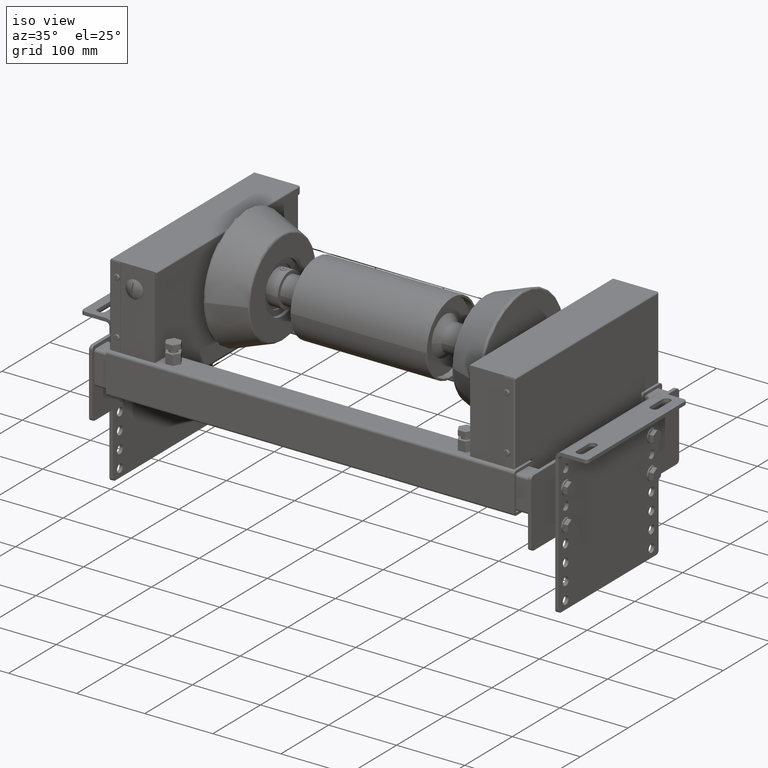
[diagram: clean part render]
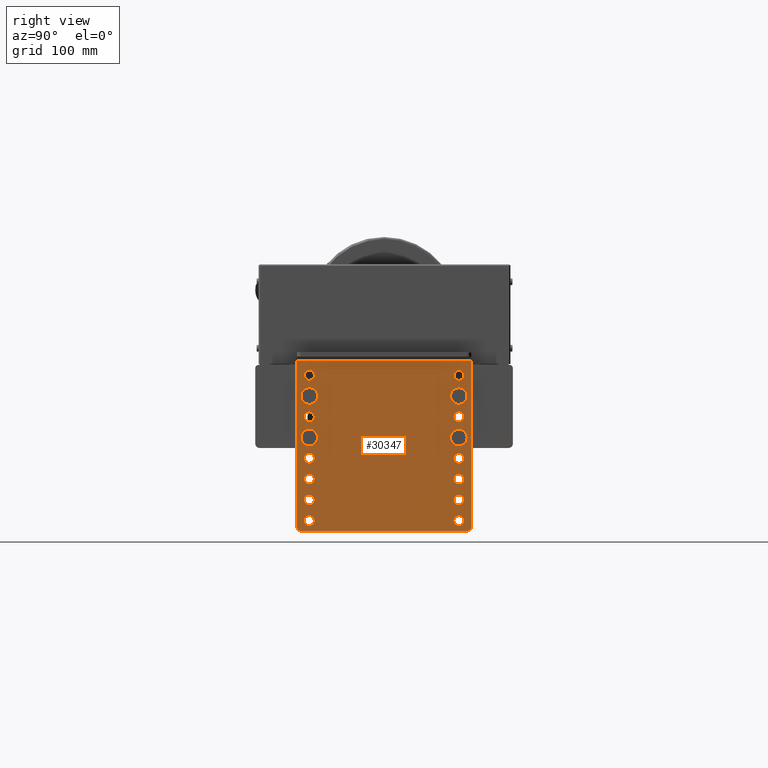
[diagram: tour spotlight — one face highlighted and labeled with its STEP entity id]
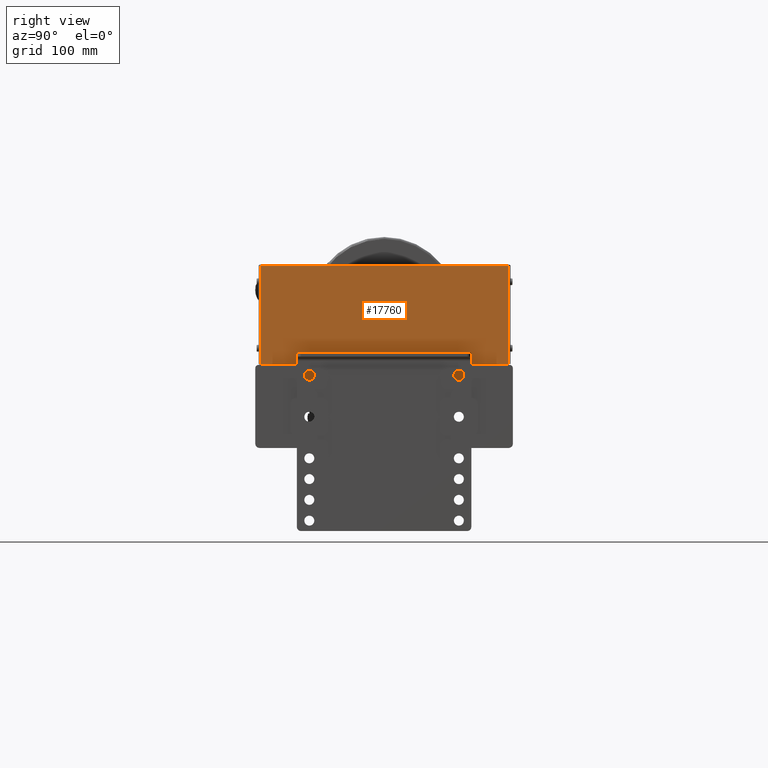
[diagram: tour spotlight — one face highlighted and labeled with its STEP entity id]
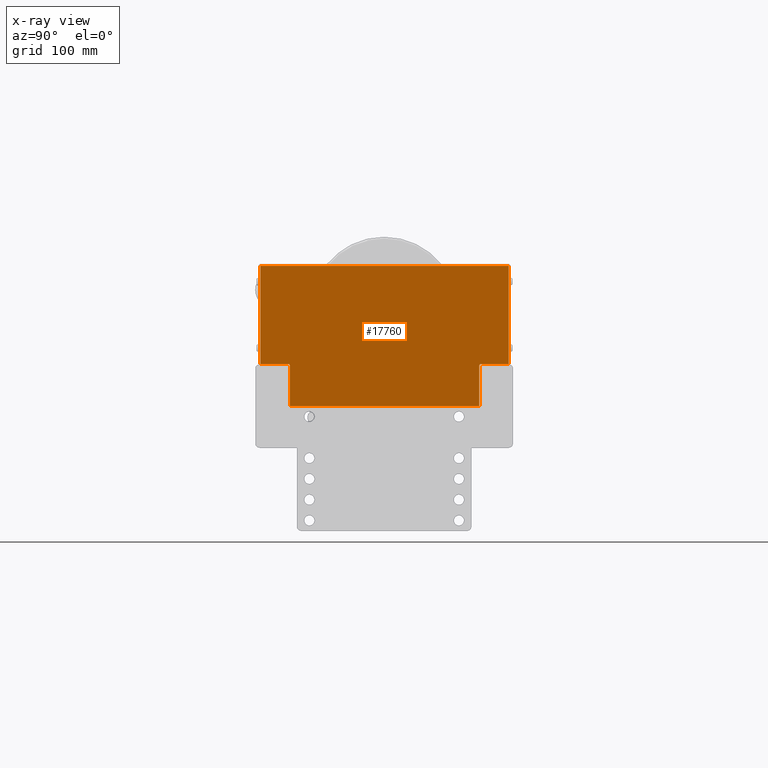
[diagram: x-ray of the same camera — body ghosted, this tour face saturated]
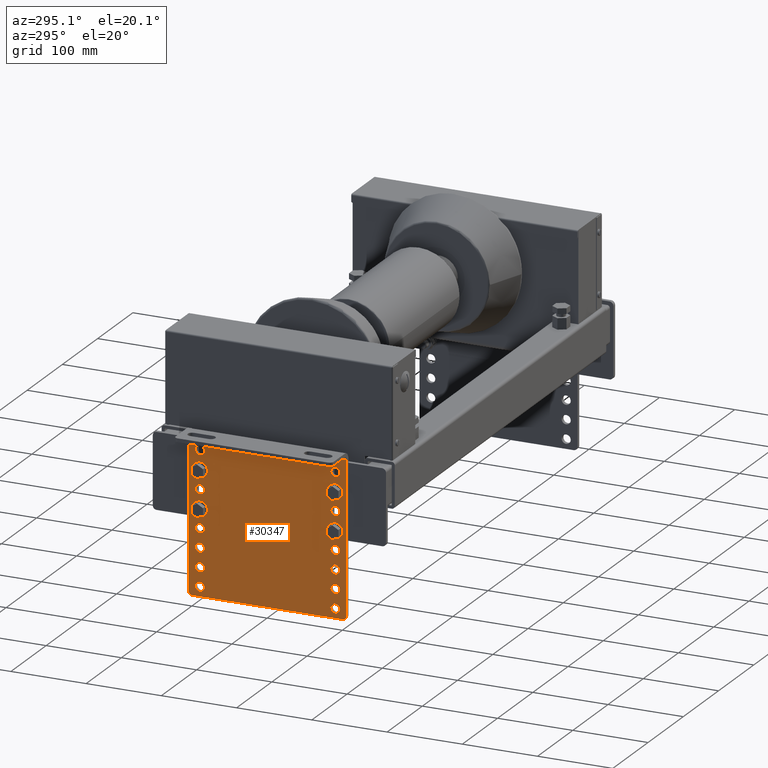
[diagram: tour spotlight — one face highlighted and labeled with its STEP entity id]
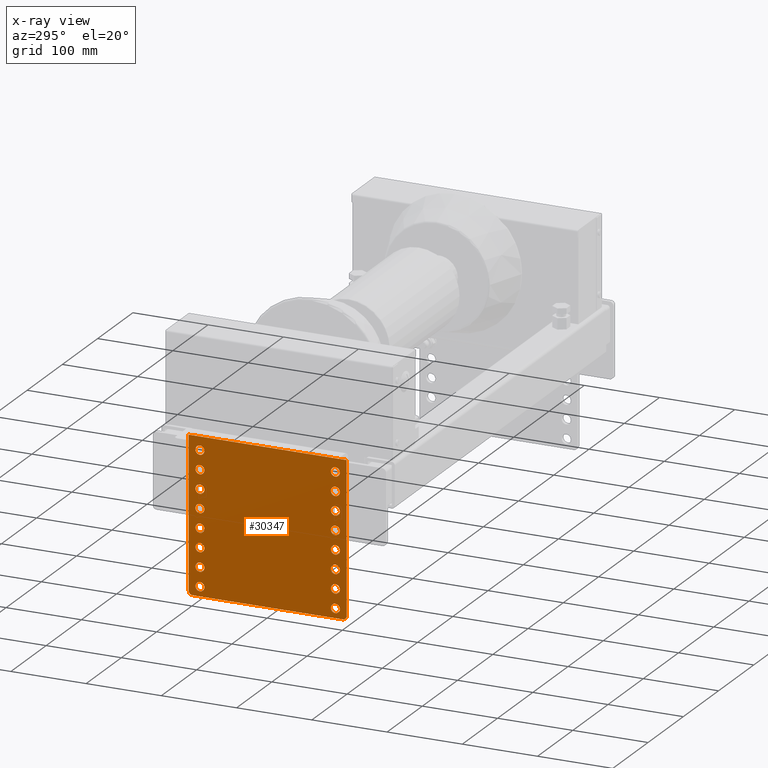
[diagram: x-ray of the same camera — body ghosted, this tour face saturated]
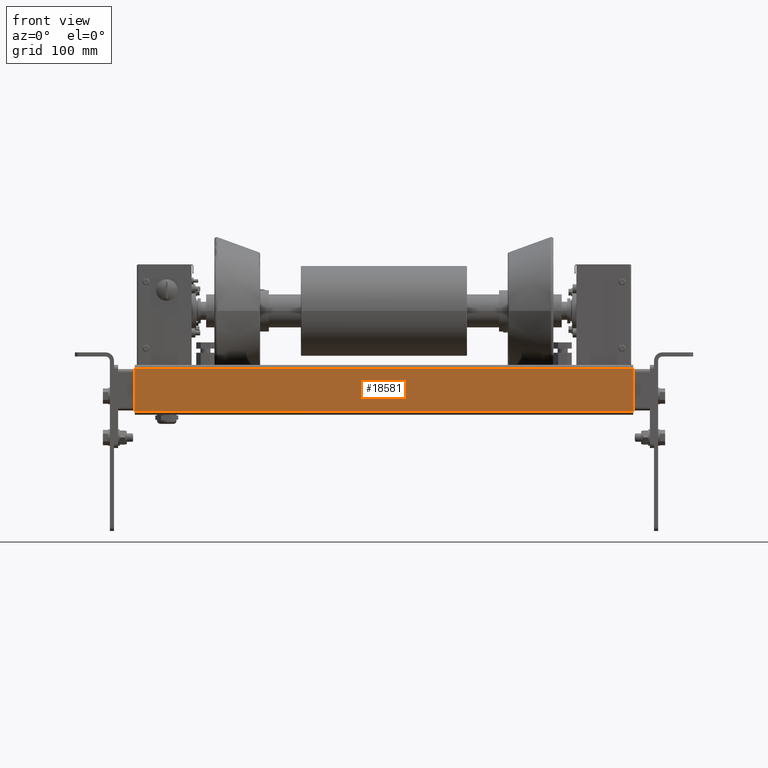
[diagram: tour spotlight — one face highlighted and labeled with its STEP entity id]
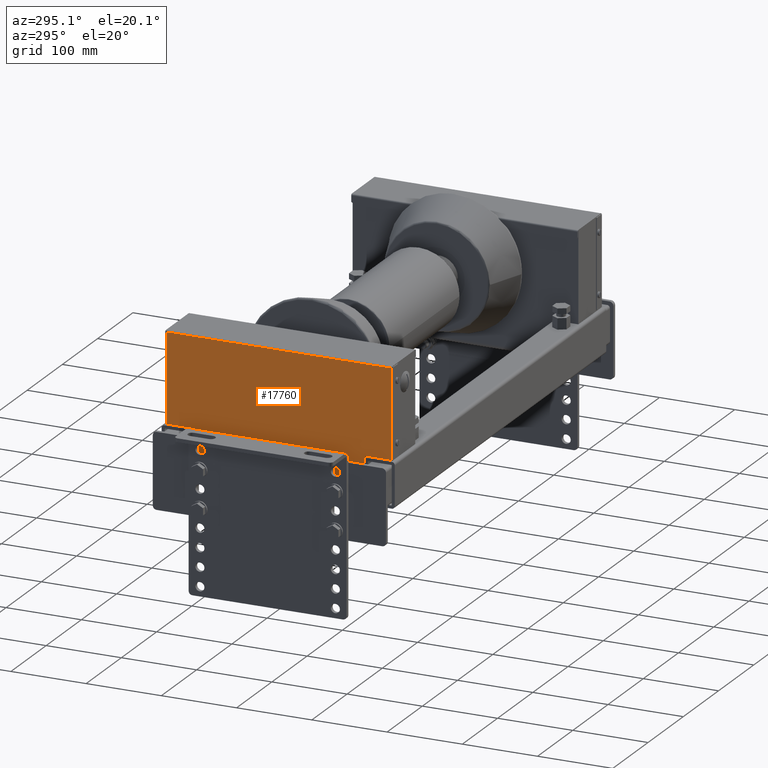
[diagram: tour spotlight — one face highlighted and labeled with its STEP entity id]
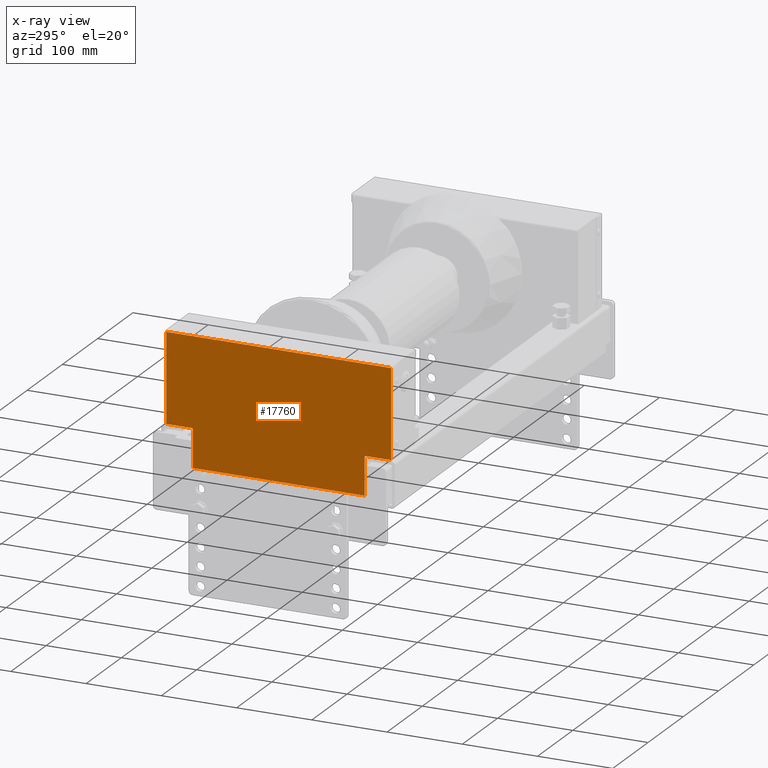
[diagram: x-ray of the same camera — body ghosted, this tour face saturated]
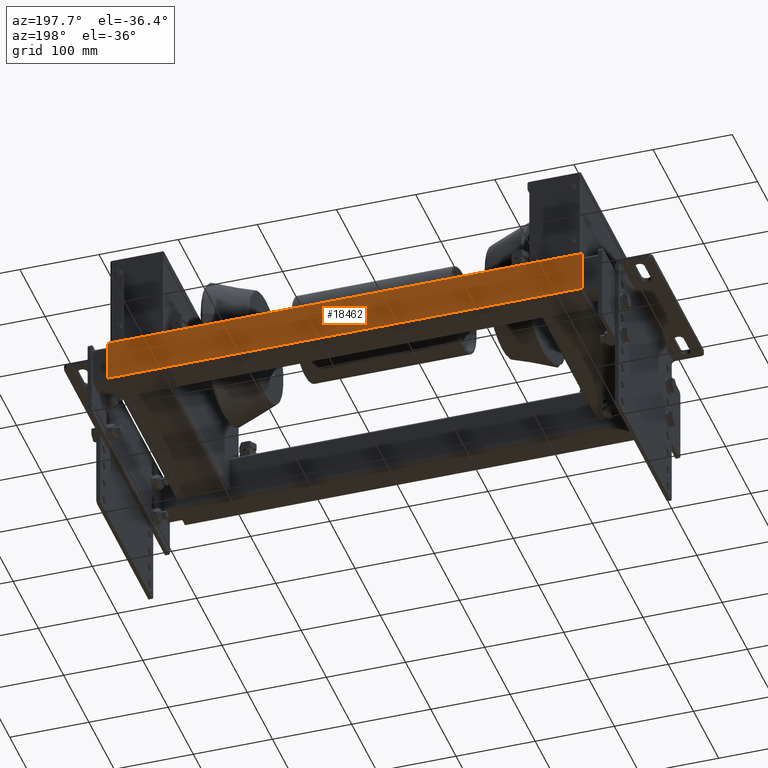
[diagram: tour spotlight — one face highlighted and labeled with its STEP entity id]
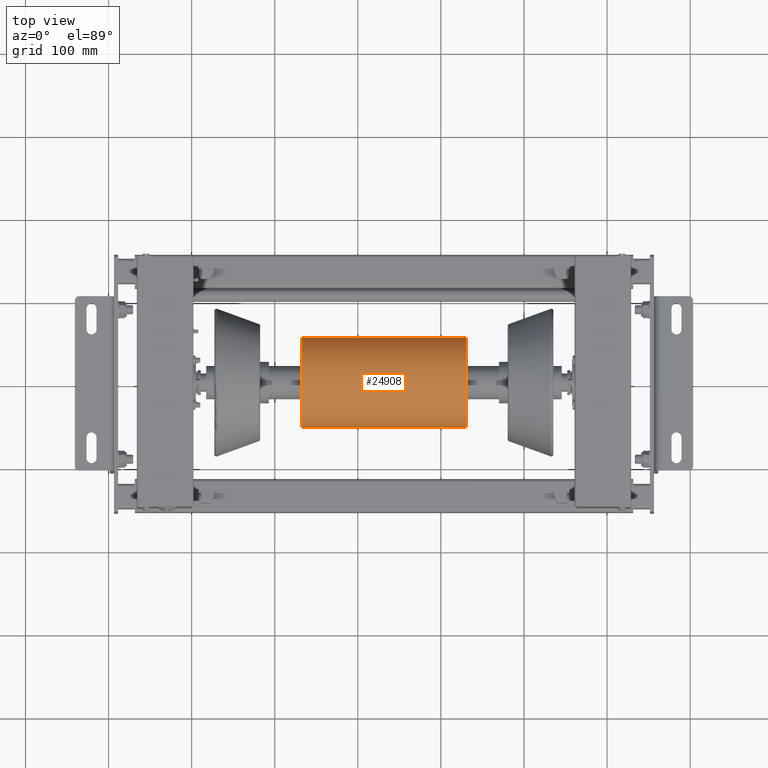
[diagram: tour spotlight — one face highlighted and labeled with its STEP entity id]
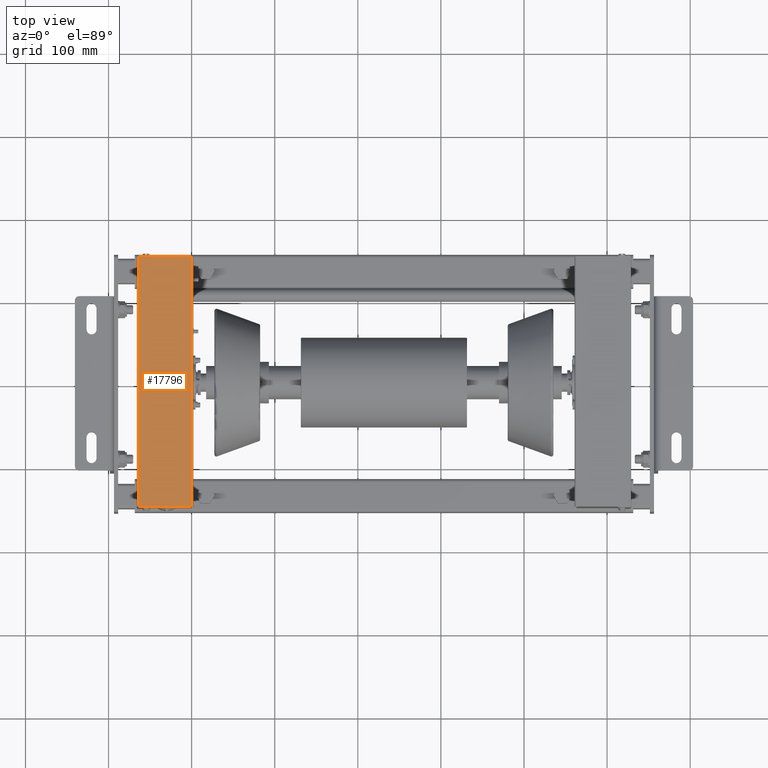
[diagram: tour spotlight — one face highlighted and labeled with its STEP entity id]
A machine part: a face-by-face anatomy tour. The part has 2640 B-rep faces; the first image is the clean iso view, then the 8 largest visible faces are spotlighted one at a time (largest first), each with its STEP entity span.

Face 1 — right view, entity #30347. In plain terms, the highlighted planar face has unit normal (1, 0, 0).
Definition (entity closure, byte-faithful):
#29099=CARTESIAN_POINT('',(-80.957093014422583,-114.089066365486590,4.500000000000000));
#29100=VERTEX_POINT('',#29099);
#29109=CARTESIAN_POINT('',(-92.957093014422583,-114.089066365486590,4.500000000000000));
#29110=VERTEX_POINT('',#29109);
#29111=CARTESIAN_POINT('',(-86.957093014422583,-114.089066365486590,4.500000000000000));
#29112=DIRECTION('',(0.0,0.0,-1.0));
#29113=DIRECTION('',(1.0,0.0,0.0));
#29114=AXIS2_PLACEMENT_3D('',#29111,#29112,#29113);
#29115=CIRCLE('',#29114,6.0);
#29116=EDGE_CURVE('',#29110,#29100,#29115,.T.);
#29141=CARTESIAN_POINT('',(99.042906985577417,-114.089066365486590,4.500000000000000));
#29142=VERTEX_POINT('',#29141);
#29151=CARTESIAN_POINT('',(87.042906985577417,-114.089066365486590,4.500000000000000));
#29152=VERTEX_POINT('',#29151);
#29153=CARTESIAN_POINT('',(93.042906985577417,-114.089066365486590,4.500000000000000));
#29154=DIRECTION('',(0.0,0.0,-1.0));
#29155=DIRECTION('',(1.0,0.0,0.0));
#29156=AXIS2_PLACEMENT_3D('',#29153,#29154,#29155);
#29157=CIRCLE('',#29156,6.0);
#29158=EDGE_CURVE('',#29152,#29142,#29157,.T.);
#29183=CARTESIAN_POINT('',(-80.957093014422583,-89.089066365486588,4.500000000000000));
#29184=VERTEX_POINT('',#29183);
#29193=CARTESIAN_POINT('',(-92.957093014422583,-89.089066365486588,4.500000000000000));
#29194=VERTEX_POINT('',#29193);
#29195=CARTESIAN_POINT('',(-86.957093014422583,-89.089066365486588,4.500000000000000));
#29196=DIRECTION('',(0.0,0.0,-1.0));
#29197=DIRECTION('',(1.0,0.0,0.0));
#29198=AXIS2_PLACEMENT_3D('',#29195,#29196,#29197);
#29199=CIRCLE('',#29198,6.0);
#29200=EDGE_CURVE('',#29194,#29184,#29199,.T.);
#29225=CARTESIAN_POINT('',(99.042906985577417,-89.089066365486588,4.500000000000000));
#29226=VERTEX_POINT('',#29225);
#29235=CARTESIAN_POINT('',(87.042906985577417,-89.089066365486588,4.500000000000000));
#29236=VERTEX_POINT('',#29235);
#29237=CARTESIAN_POINT('',(93.042906985577417,-89.089066365486588,4.500000000000000));
#29238=DIRECTION('',(0.0,0.0,-1.0));
#29239=DIRECTION('',(1.0,0.0,0.0));
#29240=AXIS2_PLACEMENT_3D('',#29237,#29238,#29239);
#29241=CIRCLE('',#29240,6.0);
#29242=EDGE_CURVE('',#29236,#29226,#29241,.T.);
#29267=CARTESIAN_POINT('',(-80.957093014422568,-64.089066365486588,4.500000000000000));
#29268=VERTEX_POINT('',#29267);
#29277=CARTESIAN_POINT('',(-92.957093014422568,-64.089066365486588,4.500000000000000));
#29278=VERTEX_POINT('',#29277);
#29279=CARTESIAN_POINT('',(-86.957093014422568,-64.089066365486588,4.500000000000000));
#29280=DIRECTION('',(0.0,0.0,-1.0));
#29281=DIRECTION('',(1.0,0.0,0.0));
#29282=AXIS2_PLACEMENT_3D('',#29279,#29280,#29281);
#29283=CIRCLE('',#29282,6.0);
#29284=EDGE_CURVE('',#29278,#29268,#29283,.T.);
#29309=CARTESIAN_POINT('',(99.042906985577417,-64.089066365486588,4.500000000000000));
#29310=VERTEX_POINT('',#29309);
#29319=CARTESIAN_POINT('',(87.042906985577417,-64.089066365486588,4.500000000000000));
#29320=VERTEX_POINT('',#29319);
#29321=CARTESIAN_POINT('',(93.042906985577417,-64.089066365486588,4.500000000000000));
#29322=DIRECTION('',(0.0,0.0,-1.0));
#29323=DIRECTION('',(1.0,0.0,0.0));
#29324=AXIS2_PLACEMENT_3D('',#29321,#29322,#29323);
#29325=CIRCLE('',#29324,6.0);
#29326=EDGE_CURVE('',#29320,#29310,#29325,.T.);
#29351=CARTESIAN_POINT('',(-80.957093014422568,-39.089066365486588,4.500000000000000));
#29352=VERTEX_POINT('',#29351);
#29361=CARTESIAN_POINT('',(-92.957093014422568,-39.089066365486588,4.500000000000000));
#29362=VERTEX_POINT('',#29361);
#29363=CARTESIAN_POINT('',(-86.957093014422568,-39.089066365486588,4.500000000000000));
#29364=DIRECTION('',(0.0,0.0,-1.0));
#29365=DIRECTION('',(1.0,0.0,0.0));
#29366=AXIS2_PLACEMENT_3D('',#29363,#29364,#29365);
#29367=CIRCLE('',#29366,6.0);
#29368=EDGE_CURVE('',#29362,#29352,#29367,.T.);
#29393=CARTESIAN_POINT('',(99.042906985577446,-39.089066365486588,4.500000000000000));
#29394=VERTEX_POINT('',#29393);
#29403=CARTESIAN_POINT('',(87.042906985577446,-39.089066365486588,4.500000000000000));
#29404=VERTEX_POINT('',#29403);
#29405=CARTESIAN_POINT('',(93.042906985577446,-39.089066365486588,4.500000000000000));
#29406=DIRECTION('',(0.0,0.0,-1.0));
#29407=DIRECTION('',(1.0,0.0,0.0));
#29408=AXIS2_PLACEMENT_3D('',#29405,#29406,#29407);
#29409=CIRCLE('',#29408,6.0);
#29410=EDGE_CURVE('',#29404,#29394,#29409,.T.);
#29435=CARTESIAN_POINT('',(-80.957093014422554,-14.089066365486588,4.500000000000000));
#29436=VERTEX_POINT('',#29435);
#29445=CARTESIAN_POINT('',(-92.957093014422554,-14.089066365486588,4.500000000000000));
#29446=VERTEX_POINT('',#29445);
#29447=CARTESIAN_POINT('',(-86.957093014422554,-14.089066365486588,4.500000000000000));
#29448=DIRECTION('',(0.0,0.0,-1.0));
#29449=DIRECTION('',(1.0,0.0,0.0));
#29450=AXIS2_PLACEMENT_3D('',#29447,#29448,#29449);
#29451=CIRCLE('',#29450,6.0);
#29452=EDGE_CURVE('',#29446,#29436,#29451,.T.);
#29477=CARTESIAN_POINT('',(99.042906985577446,-14.089066365486588,4.500000000000000));
#29478=VERTEX_POINT('',#29477);
#29487=CARTESIAN_POINT('',(87.042906985577446,-14.089066365486588,4.500000000000000));
#29488=VERTEX_POINT('',#29487);
#29489=CARTESIAN_POINT('',(93.042906985577446,-14.089066365486588,4.500000000000000));
#29490=DIRECTION('',(0.0,0.0,-1.0));
#29491=DIRECTION('',(1.0,0.0,0.0));
#29492=AXIS2_PLACEMENT_3D('',#29489,#29490,#29491);
#29493=CIRCLE('',#29492,6.0);
#29494=EDGE_CURVE('',#29488,#29478,#29493,.T.);
#29519=CARTESIAN_POINT('',(-80.957093014422554,10.910933634513412,4.500000000000000));
#29520=VERTEX_POINT('',#29519);
#29529=CARTESIAN_POINT('',(-92.957093014422554,10.910933634513412,4.500000000000000));
#29530=VERTEX_POINT('',#29529);
#29531=CARTESIAN_POINT('',(-86.957093014422554,10.910933634513412,4.500000000000000));
#29532=DIRECTION('',(0.0,0.0,-1.0));
#29533=DIRECTION('',(1.0,0.0,0.0));
#29534=AXIS2_PLACEMENT_3D('',#29531,#29532,#29533);
#29535=CIRCLE('',#29534,6.0);
#29536=EDGE_CURVE('',#29530,#29520,#29535,.T.);
#29561=CARTESIAN_POINT('',(99.042906985577446,10.910933634513412,4.500000000000000));
#29562=VERTEX_POINT('',#29561);
#29571=CARTESIAN_POINT('',(87.042906985577446,10.910933634513412,4.500000000000000));
#29572=VERTEX_POINT('',#29571);
#29573=CARTESIAN_POINT('',(93.042906985577446,10.910933634513412,4.500000000000000));
#29574=DIRECTION('',(0.0,0.0,-1.0));
#29575=DIRECTION('',(1.0,0.0,0.0));
#29576=AXIS2_PLACEMENT_3D('',#29573,#29574,#29575);
#29577=CIRCLE('',#29576,6.0);
#29578=EDGE_CURVE('',#29572,#29562,#29577,.T.);
#29603=CARTESIAN_POINT('',(-80.957093014422554,35.910933634513412,4.500000000000000));
#29604=VERTEX_POINT('',#29603);
#29613=CARTESIAN_POINT('',(-92.957093014422554,35.910933634513412,4.500000000000000));
#29614=VERTEX_POINT('',#29613);
#29615=CARTESIAN_POINT('',(-86.957093014422554,35.910933634513412,4.500000000000000));
#29616=DIRECTION('',(0.0,0.0,-1.0));
#29617=DIRECTION('',(1.0,0.0,0.0));
#29618=AXIS2_PLACEMENT_3D('',#29615,#29616,#29617);
#29619=CIRCLE('',#29618,6.0);
#29620=EDGE_CURVE('',#29614,#29604,#29619,.T.);
#29645=CARTESIAN_POINT('',(99.042906985577446,35.910933634513412,4.500000000000000));
#29646=VERTEX_POINT('',#29645);
#29655=CARTESIAN_POINT('',(87.042906985577446,35.910933634513412,4.500000000000000));
#29656=VERTEX_POINT('',#29655);
#29657=CARTESIAN_POINT('',(93.042906985577446,35.910933634513412,4.500000000000000));
#29658=DIRECTION('',(0.0,0.0,-1.0));
#29659=DIRECTION('',(1.0,0.0,0.0));
#29660=AXIS2_PLACEMENT_3D('',#29657,#29658,#29659);
#29661=CIRCLE('',#29660,6.0);
#29662=EDGE_CURVE('',#29656,#29646,#29661,.T.);
#29687=CARTESIAN_POINT('',(-80.957093014422540,60.910933634513412,4.500000000000000));
#29688=VERTEX_POINT('',#29687);
#29697=CARTESIAN_POINT('',(-92.957093014422540,60.910933634513412,4.500000000000000));
#29698=VERTEX_POINT('',#29697);
#29699=CARTESIAN_POINT('',(-86.957093014422540,60.910933634513412,4.500000000000000));
#29700=DIRECTION('',(0.0,0.0,-1.0));
#29701=DIRECTION('',(1.0,0.0,0.0));
#29702=AXIS2_PLACEMENT_3D('',#29699,#29700,#29701);
#29703=CIRCLE('',#29702,6.0);
#29704=EDGE_CURVE('',#29698,#29688,#29703,.T.);
#29729=CARTESIAN_POINT('',(99.042906985577446,60.910933634513412,4.500000000000000));
#29730=VERTEX_POINT('',#29729);
#29739=CARTESIAN_POINT('',(87.042906985577446,60.910933634513412,4.500000000000000));
#29740=VERTEX_POINT('',#29739);
#29741=CARTESIAN_POINT('',(93.042906985577446,60.910933634513412,4.500000000000000));
#29742=DIRECTION('',(0.0,0.0,-1.0));
#29743=DIRECTION('',(1.0,0.0,0.0));
#29744=AXIS2_PLACEMENT_3D('',#29741,#29742,#29743);
#29745=CIRCLE('',#29744,6.0);
#29746=EDGE_CURVE('',#29740,#29730,#29745,.T.);
#29771=CARTESIAN_POINT('',(108.042906985577450,-121.589066365486590,4.500000000000000));
#29772=VERTEX_POINT('',#29771);
#29773=CARTESIAN_POINT('',(103.042906985577450,-126.589066365486590,4.500000000000000));
#29774=VERTEX_POINT('',#29773);
#29775=CARTESIAN_POINT('',(103.042906985577450,-121.589066365486590,4.500000000000000));
#29776=DIRECTION('',(0.0,0.0,-1.000000000000000));
#29777=DIRECTION('',(0.707106781186547,-0.707106781186547,0.0));
#29778=AXIS2_PLACEMENT_3D('',#29775,#29776,#29777);
#29779=CIRCLE('',#29778,4.999999999999999);
#29780=EDGE_CURVE('',#29772,#29774,#29779,.T.);
#29855=CARTESIAN_POINT('',(108.042906985577450,78.410933634513441,4.500000000000000));
#29856=VERTEX_POINT('',#29855);
#29864=CARTESIAN_POINT('',(108.042906985577450,78.410933634513441,4.500000000000000));
#29865=DIRECTION('',(0.0,-1.0,0.0));
#29866=VECTOR('',#29865,200.000000000000030);
#29867=LINE('',#29864,#29866);
#29868=EDGE_CURVE('',#29856,#29772,#29867,.T.);
#30079=CARTESIAN_POINT('',(-96.957093014422583,-126.589066365486590,4.500000000000000));
#30080=VERTEX_POINT('',#30079);
#30081=CARTESIAN_POINT('',(-101.957093014422580,-121.589066365486590,4.500000000000000));
#30082=VERTEX_POINT('',#30081);
#30083=CARTESIAN_POINT('',(-96.957093014422583,-121.589066365486590,4.500000000000000));
#30084=DIRECTION('',(0.0,0.0,-1.000000000000000));
#30085=DIRECTION('',(-0.707106781186547,-0.707106781186547,0.0));
#30086=AXIS2_PLACEMENT_3D('',#30083,#30084,#30085);
#30087=CIRCLE('',#30086,4.999999999999999);
#30088=EDGE_CURVE('',#30080,#30082,#30087,.T.);
#30112=CARTESIAN_POINT('',(-101.957093014422580,78.410933634513441,4.500000000000000));
#30113=VERTEX_POINT('',#30112);
#30114=CARTESIAN_POINT('',(-101.957093014422580,-121.589066365486590,4.500000000000000));
#30115=DIRECTION('',(0.0,1.0,0.0));
#30116=VECTOR('',#30115,200.000000000000030);
#30117=LINE('',#30114,#30116);
#30118=EDGE_CURVE('',#30082,#30113,#30117,.T.);
#30164=CARTESIAN_POINT('',(3.042906985577439,-19.089066365486580,4.500000000000000));
#30165=DIRECTION('',(0.0,0.0,1.0));
#30166=DIRECTION('',(1.0,0.0,0.0));
#30167=AXIS2_PLACEMENT_3D('',#30164,#30165,#30166);
#30168=PLANE('',#30167);
#30169=ORIENTED_EDGE('',*,*,#29780,.F.);
#30170=ORIENTED_EDGE('',*,*,#29868,.F.);
#30171=CARTESIAN_POINT('',(-101.957093014422580,78.410933634513441,4.500000000000000));
#30172=DIRECTION('',(1.0,0.0,0.0));
#30173=VECTOR('',#30172,210.000000000000030);
#30174=LINE('',#30171,#30173);
#30175=EDGE_CURVE('',#30113,#29856,#30174,.T.);
#30176=ORIENTED_EDGE('',*,*,#30175,.F.);
#30177=ORIENTED_EDGE('',*,*,#30118,.F.);
#30178=ORIENTED_EDGE('',*,*,#30088,.F.);
#30179=CARTESIAN_POINT('',(103.042906985577450,-126.589066365486590,4.500000000000000));
#30180=DIRECTION('',(-1.0,0.0,0.0));
#30181=VECTOR('',#30180,200.000000000000030);
#30182=LINE('',#30179,#30181);
#30183=EDGE_CURVE('',#29774,#30080,#30182,.T.);
#30184=ORIENTED_EDGE('',*,*,#30183,.F.);
#30185=EDGE_LOOP('',(#30169,#30170,#30176,#30177,#30178,#30184));
#30186=FACE_OUTER_BOUND('',#30185,.T.);
#30187=CARTESIAN_POINT('',(-86.957093014422583,-114.089066365486590,4.500000000000000));
#30188=DIRECTION('',(0.0,0.0,-1.0));
#30189=DIRECTION('',(1.0,0.0,0.0));
#30190=AXIS2_PLACEMENT_3D('',#30187,#30188,#30189);
#30191=CIRCLE('',#30190,6.0);
#30192=EDGE_CURVE('',#29100,#29110,#30191,.T.);
#30193=ORIENTED_EDGE('',*,*,#30192,.T.);
#30194=ORIENTED_EDGE('',*,*,#29116,.T.);
#30195=EDGE_LOOP('',(#30193,#30194));
#30196=FACE_BOUND('',#30195,.T.);
#30197=CARTESIAN_POINT('',(93.042906985577417,-114.089066365486590,4.500000000000000));
#30198=DIRECTION('',(0.0,0.0,-1.0));
#30199=DIRECTION('',(1.0,0.0,0.0));
#30200=AXIS2_PLACEMENT_3D('',#30197,#30198,#30199);
#30201=CIRCLE('',#30200,6.0);
#30202=EDGE_CURVE('',#29142,#29152,#30201,.T.);
#30203=ORIENTED_EDGE('',*,*,#30202,.T.);
#30204=ORIENTED_EDGE('',*,*,#29158,.T.);
#30205=EDGE_LOOP('',(#30203,#30204));
#30206=FACE_BOUND('',#30205,.T.);
#30207=CARTESIAN_POINT('',(-86.957093014422583,-89.089066365486588,4.500000000000000));
#30208=DIRECTION('',(0.0,0.0,-1.0));
#30209=DIRECTION('',(1.0,0.0,0.0));
#30210=AXIS2_PLACEMENT_3D('',#30207,#30208,#30209);
#30211=CIRCLE('',#30210,6.0);
#30212=EDGE_CURVE('',#29184,#29194,#30211,.T.);
#30213=ORIENTED_EDGE('',*,*,#30212,.T.);
#30214=ORIENTED_EDGE('',*,*,#29200,.T.);
#30215=EDGE_LOOP('',(#30213,#30214));
#30216=FACE_BOUND('',#30215,.T.);
#30217=CARTESIAN_POINT('',(93.042906985577417,-89.089066365486588,4.500000000000000));
#30218=DIRECTION('',(0.0,0.0,-1.0));
#30219=DIRECTION('',(1.0,0.0,0.0));
#30220=AXIS2_PLACEMENT_3D('',#30217,#30218,#30219);
#30221=CIRCLE('',#30220,6.0);
#30222=EDGE_CURVE('',#29226,#29236,#30221,.T.);
#30223=ORIENTED_EDGE('',*,*,#30222,.T.);
#30224=ORIENTED_EDGE('',*,*,#29242,.T.);
#30225=EDGE_LOOP('',(#30223,#30224));
#30226=FACE_BOUND('',#30225,.T.);
#30227=CARTESIAN_POINT('',(-86.957093014422568,-64.089066365486588,4.500000000000000));
#30228=DIRECTION('',(0.0,0.0,-1.0));
#30229=DIRECTION('',(1.0,0.0,0.0));
#30230=AXIS2_PLACEMENT_3D('',#30227,#30228,#30229);
#30231=CIRCLE('',#30230,6.0);
#30232=EDGE_CURVE('',#29268,#29278,#30231,.T.);
#30233=ORIENTED_EDGE('',*,*,#30232,.T.);
#30234=ORIENTED_EDGE('',*,*,#29284,.T.);
#30235=EDGE_LOOP('',(#30233,#30234));
#30236=FACE_BOUND('',#30235,.T.);
#30237=CARTESIAN_POINT('',(93.042906985577417,-64.089066365486588,4.500000000000000));
#30238=DIRECTION('',(0.0,0.0,-1.0));
#30239=DIRECTION('',(1.0,0.0,0.0));
#30240=AXIS2_PLACEMENT_3D('',#30237,#30238,#30239);
#30241=CIRCLE('',#30240,6.0);
#30242=EDGE_CURVE('',#29310,#29320,#30241,.T.);
#30243=ORIENTED_EDGE('',*,*,#30242,.T.);
#30244=ORIENTED_EDGE('',*,*,#29326,.T.);
#30245=EDGE_LOOP('',(#30243,#30244));
#30246=FACE_BOUND('',#30245,.T.);
#30247=CARTESIAN_POINT('',(-86.957093014422568,-39.089066365486588,4.500000000000000));
#30248=DIRECTION('',(0.0,0.0,-1.0));
#30249=DIRECTION('',(1.0,0.0,0.0));
#30250=AXIS2_PLACEMENT_3D('',#30247,#30248,#30249);
#30251=CIRCLE('',#30250,6.0);
#30252=EDGE_CURVE('',#29352,#29362,#30251,.T.);
#30253=ORIENTED_EDGE('',*,*,#30252,.T.);
#30254=ORIENTED_EDGE('',*,*,#29368,.T.);
#30255=EDGE_LOOP('',(#30253,#30254));
#30256=FACE_BOUND('',#30255,.T.);
#30257=CARTESIAN_POINT('',(93.042906985577446,-39.089066365486588,4.500000000000000));
#30258=DIRECTION('',(0.0,0.0,-1.0));
#30259=DIRECTION('',(1.0,0.0,0.0));
#30260=AXIS2_PLACEMENT_3D('',#30257,#30258,#30259);
#30261=CIRCLE('',#30260,6.0);
#30262=EDGE_CURVE('',#29394,#29404,#30261,.T.);
#30263=ORIENTED_EDGE('',*,*,#30262,.T.);
#30264=ORIENTED_EDGE('',*,*,#29410,.T.);
#30265=EDGE_LOOP('',(#30263,#30264));
#30266=FACE_BOUND('',#30265,.T.);
#30267=CARTESIAN_POINT('',(-86.957093014422554,-14.089066365486588,4.500000000000000));
#30268=DIRECTION('',(0.0,0.0,-1.0));
#30269=DIRECTION('',(1.0,0.0,0.0));
#30270=AXIS2_PLACEMENT_3D('',#30267,#30268,#30269);
#30271=CIRCLE('',#30270,6.0);
#30272=EDGE_CURVE('',#29436,#29446,#30271,.T.);
#30273=ORIENTED_EDGE('',*,*,#30272,.T.);
#30274=ORIENTED_EDGE('',*,*,#29452,.T.);
#30275=EDGE_LOOP('',(#30273,#30274));
#30276=FACE_BOUND('',#30275,.T.);
#30277=CARTESIAN_POINT('',(93.042906985577446,-14.089066365486588,4.500000000000000));
#30278=DIRECTION('',(0.0,0.0,-1.0));
#30279=DIRECTION('',(1.0,0.0,0.0));
#30280=AXIS2_PLACEMENT_3D('',#30277,#30278,#30279);
#30281=CIRCLE('',#30280,6.0);
#30282=EDGE_CURVE('',#29478,#29488,#30281,.T.);
#30283=ORIENTED_EDGE('',*,*,#30282,.T.);
#30284=ORIENTED_EDGE('',*,*,#29494,.T.);
#30285=EDGE_LOOP('',(#30283,#30284));
#30286=FACE_BOUND('',#30285,.T.);
#30287=CARTESIAN_POINT('',(-86.957093014422554,10.910933634513412,4.500000000000000));
#30288=DIRECTION('',(0.0,0.0,-1.0));
#30289=DIRECTION('',(1.0,0.0,0.0));
#30290=AXIS2_PLACEMENT_3D('',#30287,#30288,#30289);
#30291=CIRCLE('',#30290,6.0);
#30292=EDGE_CURVE('',#29520,#29530,#30291,.T.);
#30293=ORIENTED_EDGE('',*,*,#30292,.T.);
#30294=ORIENTED_EDGE('',*,*,#29536,.T.);
#30295=EDGE_LOOP('',(#30293,#30294));
#30296=FACE_BOUND('',#30295,.T.);
#30297=CARTESIAN_POINT('',(93.042906985577446,10.910933634513412,4.500000000000000));
#30298=DIRECTION('',(0.0,0.0,-1.0));
#30299=DIRECTION('',(1.0,0.0,0.0));
#30300=AXIS2_PLACEMENT_3D('',#30297,#30298,#30299);
#30301=CIRCLE('',#30300,6.0);
#30302=EDGE_CURVE('',#29562,#29572,#30301,.T.);
#30303=ORIENTED_EDGE('',*,*,#30302,.T.);
#30304=ORIENTED_EDGE('',*,*,#29578,.T.);
#30305=EDGE_LOOP('',(#30303,#30304));
#30306=FACE_BOUND('',#30305,.T.);
#30307=CARTESIAN_POINT('',(-86.957093014422554,35.910933634513412,4.500000000000000));
#30308=DIRECTION('',(0.0,0.0,-1.0));
#30309=DIRECTION('',(1.0,0.0,0.0));
#30310=AXIS2_PLACEMENT_3D('',#30307,#30308,#30309);
#30311=CIRCLE('',#30310,6.0);
#30312=EDGE_CURVE('',#29604,#29614,#30311,.T.);
#30313=ORIENTED_EDGE('',*,*,#30312,.T.);
#30314=ORIENTED_EDGE('',*,*,#29620,.T.);
#30315=EDGE_LOOP('',(#30313,#30314));
#30316=FACE_BOUND('',#30315,.T.);
#30317=CARTESIAN_POINT('',(93.042906985577446,35.910933634513412,4.500000000000000));
#30318=DIRECTION('',(0.0,0.0,-1.0));
#30319=DIRECTION('',(1.0,0.0,0.0));
#30320=AXIS2_PLACEMENT_3D('',#30317,#30318,#30319);
#30321=CIRCLE('',#30320,6.0);
#30322=EDGE_CURVE('',#29646,#29656,#30321,.T.);
#30323=ORIENTED_EDGE('',*,*,#30322,.T.);
#30324=ORIENTED_EDGE('',*,*,#29662,.T.);
#30325=EDGE_LOOP('',(#30323,#30324));
#30326=FACE_BOUND('',#30325,.T.);
#30327=CARTESIAN_POINT('',(-86.957093014422540,60.910933634513412,4.500000000000000));
#30328=DIRECTION('',(0.0,0.0,-1.0));
#30329=DIRECTION('',(1.0,0.0,0.0));
#30330=AXIS2_PLACEMENT_3D('',#30327,#30328,#30329);
#30331=CIRCLE('',#30330,6.0);
#30332=EDGE_CURVE('',#29688,#29698,#30331,.T.);
#30333=ORIENTED_EDGE('',*,*,#30332,.T.);
#30334=ORIENTED_EDGE('',*,*,#29704,.T.);
#30335=EDGE_LOOP('',(#30333,#30334));
#30336=FACE_BOUND('',#30335,.T.);
#30337=CARTESIAN_POINT('',(93.042906985577446,60.910933634513412,4.500000000000000));
#30338=DIRECTION('',(0.0,0.0,-1.0));
#30339=DIRECTION('',(1.0,0.0,0.0));
#30340=AXIS2_PLACEMENT_3D('',#30337,#30338,#30339);
#30341=CIRCLE('',#30340,6.0);
#30342=EDGE_CURVE('',#29730,#29740,#30341,.T.);
#30343=ORIENTED_EDGE('',*,*,#30342,.T.);
#30344=ORIENTED_EDGE('',*,*,#29746,.T.);
#30345=EDGE_LOOP('',(#30343,#30344));
#30346=FACE_BOUND('',#30345,.T.);
#30347=ADVANCED_FACE('',(#30186,#30196,#30206,#30216,#30226,#30236,#30246,#30256,#30266,#30276,#30286,#30296,#30306,#30316,#30326,#30336,#30346),#30168,.T.);

Face 2 — right view, entity #17760. An x-ray twin of the same camera follows (body ghosted, this face saturated) — the face is partly hidden behind the body. In plain terms, the highlighted planar face has unit normal (-1, -0, 0).
Definition (entity closure, byte-faithful):
#16842=CARTESIAN_POINT('',(-56.0,-33.500000000000000,-0.500000000000000));
#16843=VERTEX_POINT('',#16842);
#16844=CARTESIAN_POINT('',(-54.0,-35.500000000000000,-0.500000000000000));
#16845=VERTEX_POINT('',#16844);
#16846=CARTESIAN_POINT('',(-56.0,-35.500000000000000,-0.500000000000000));
#16847=DIRECTION('',(0.0,0.0,-1.000000000000000));
#16848=DIRECTION('',(0.707106781186548,0.707106781186548,0.0));
#16849=AXIS2_PLACEMENT_3D('',#16846,#16847,#16848);
#16850=CIRCLE('',#16849,2.000000000000000);
#16851=EDGE_CURVE('',#16843,#16845,#16850,.T.);
#16885=CARTESIAN_POINT('',(-54.0,-84.500000000000000,-0.500000000000000));
#16886=VERTEX_POINT('',#16885);
#16887=CARTESIAN_POINT('',(-54.0,-84.500000000000000,-0.500000000000000));
#16888=DIRECTION('',(0.0,1.0,0.0));
#16889=VECTOR('',#16888,49.0);
#16890=LINE('',#16887,#16889);
#16891=EDGE_CURVE('',#16886,#16845,#16890,.T.);
#17006=CARTESIAN_POINT('',(-89.500000000000000,-33.500000000000000,-0.500000000000000));
#17007=VERTEX_POINT('',#17006);
#17015=CARTESIAN_POINT('',(-56.0,-33.500000000000000,-0.500000000000000));
#17016=DIRECTION('',(-1.0,0.0,0.0));
#17017=VECTOR('',#17016,33.500000000000000);
#17018=LINE('',#17015,#17017);
#17019=EDGE_CURVE('',#16843,#17007,#17018,.T.);
#17453=CARTESIAN_POINT('',(176.0,-33.500000000000000,-0.500000000000000));
#17454=VERTEX_POINT('',#17453);
#17461=CARTESIAN_POINT('',(209.500000000000230,-33.500000000000000,-0.500000000000000));
#17462=VERTEX_POINT('',#17461);
#17463=CARTESIAN_POINT('',(209.500000000000230,-33.500000000000000,-0.500000000000000));
#17464=DIRECTION('',(-1.0,0.0,0.0));
#17465=VECTOR('',#17464,33.500000000000227);
#17466=LINE('',#17463,#17465);
#17467=EDGE_CURVE('',#17462,#17454,#17466,.T.);
#17485=CARTESIAN_POINT('',(174.0,-35.500000000000114,-0.500000000000000));
#17486=VERTEX_POINT('',#17485);
#17487=CARTESIAN_POINT('',(176.0,-35.500000000000114,-0.500000000000000));
#17488=DIRECTION('',(0.0,0.0,-1.000000000000000));
#17489=DIRECTION('',(-0.707106781186548,0.707106781186548,0.0));
#17490=AXIS2_PLACEMENT_3D('',#17487,#17488,#17489);
#17491=CIRCLE('',#17490,2.000000000000000);
#17492=EDGE_CURVE('',#17486,#17454,#17491,.T.);
#17667=CARTESIAN_POINT('',(209.500000000000230,84.500000000000000,-0.500000000000000));
#17668=VERTEX_POINT('',#17667);
#17676=CARTESIAN_POINT('',(-89.500000000000000,84.500000000000000,-0.500000000000000));
#17677=VERTEX_POINT('',#17676);
#17678=CARTESIAN_POINT('',(209.500000000000230,84.500000000000000,-0.500000000000000));
#17679=DIRECTION('',(-1.0,0.0,0.0));
#17680=VECTOR('',#17679,299.000000000000230);
#17681=LINE('',#17678,#17680);
#17682=EDGE_CURVE('',#17668,#17677,#17681,.T.);
#17708=CARTESIAN_POINT('',(-89.500000000000000,84.500000000000000,-0.500000000000000));
#17709=DIRECTION('',(0.0,-1.0,0.0));
#17710=VECTOR('',#17709,118.0);
#17711=LINE('',#17708,#17710);
#17712=EDGE_CURVE('',#17677,#17007,#17711,.T.);
#17726=CARTESIAN_POINT('',(60.000000000000014,4.021186440677894,-0.500000000000000));
#17727=DIRECTION('',(0.0,0.0,1.0));
#17728=DIRECTION('',(1.0,0.0,0.0));
#17729=AXIS2_PLACEMENT_3D('',#17726,#17727,#17728);
#17730=PLANE('',#17729);
#17731=ORIENTED_EDGE('',*,*,#17682,.F.);
#17732=CARTESIAN_POINT('',(209.500000000000230,-33.500000000000000,-0.500000000000000));
#17733=DIRECTION('',(0.0,1.0,0.0));
#17734=VECTOR('',#17733,118.0);
#17735=LINE('',#17732,#17734);
#17736=EDGE_CURVE('',#17462,#17668,#17735,.T.);
#17737=ORIENTED_EDGE('',*,*,#17736,.F.);
#17738=ORIENTED_EDGE('',*,*,#17467,.T.);
#17739=ORIENTED_EDGE('',*,*,#17492,.F.);
#17740=CARTESIAN_POINT('',(174.0,-84.500000000000000,-0.500000000000000));
#17741=VERTEX_POINT('',#17740);
#17742=CARTESIAN_POINT('',(174.0,-35.500000000000114,-0.500000000000000));
#17743=DIRECTION('',(0.0,-1.0,0.0));
#17744=VECTOR('',#17743,48.999999999999886);
#17745=LINE('',#17742,#17744);
#17746=EDGE_CURVE('',#17486,#17741,#17745,.T.);
#17747=ORIENTED_EDGE('',*,*,#17746,.T.);
#17748=CARTESIAN_POINT('',(-54.0,-84.500000000000000,-0.500000000000000));
#17749=DIRECTION('',(1.0,0.0,0.0));
#17750=VECTOR('',#17749,228.0);
#17751=LINE('',#17748,#17750);
#17752=EDGE_CURVE('',#16886,#17741,#17751,.T.);
#17753=ORIENTED_EDGE('',*,*,#17752,.F.);
#17754=ORIENTED_EDGE('',*,*,#16891,.T.);
#17755=ORIENTED_EDGE('',*,*,#16851,.F.);
#17756=ORIENTED_EDGE('',*,*,#17019,.T.);
#17757=ORIENTED_EDGE('',*,*,#17712,.F.);
#17758=EDGE_LOOP('',(#17731,#17737,#17738,#17739,#17747,#17753,#17754,#17755,#17756,#17757));
#17759=FACE_OUTER_BOUND('',#17758,.T.);
#17760=ADVANCED_FACE('',(#17759),#17730,.F.);

Face 3 — auxiliary view, entity #30347. An x-ray twin of the same camera follows (body ghosted, this face saturated) — the face is partly hidden behind the body. In plain terms, the highlighted planar face has unit normal (-1, -0, -0).
Definition (entity closure, byte-faithful):
#29099=CARTESIAN_POINT('',(-80.957093014422583,-114.089066365486590,4.500000000000000));
#29100=VERTEX_POINT('',#29099);
#29109=CARTESIAN_POINT('',(-92.957093014422583,-114.089066365486590,4.500000000000000));
#29110=VERTEX_POINT('',#29109);
#29111=CARTESIAN_POINT('',(-86.957093014422583,-114.089066365486590,4.500000000000000));
#29112=DIRECTION('',(0.0,0.0,-1.0));
#29113=DIRECTION('',(1.0,0.0,0.0));
#29114=AXIS2_PLACEMENT_3D('',#29111,#29112,#29113);
#29115=CIRCLE('',#29114,6.0);
#29116=EDGE_CURVE('',#29110,#29100,#29115,.T.);
#29141=CARTESIAN_POINT('',(99.042906985577417,-114.089066365486590,4.500000000000000));
#29142=VERTEX_POINT('',#29141);
#29151=CARTESIAN_POINT('',(87.042906985577417,-114.089066365486590,4.500000000000000));
#29152=VERTEX_POINT('',#29151);
#29153=CARTESIAN_POINT('',(93.042906985577417,-114.089066365486590,4.500000000000000));
#29154=DIRECTION('',(0.0,0.0,-1.0));
#29155=DIRECTION('',(1.0,0.0,0.0));
#29156=AXIS2_PLACEMENT_3D('',#29153,#29154,#29155);
#29157=CIRCLE('',#29156,6.0);
#29158=EDGE_CURVE('',#29152,#29142,#29157,.T.);
#29183=CARTESIAN_POINT('',(-80.957093014422583,-89.089066365486588,4.500000000000000));
#29184=VERTEX_POINT('',#29183);
#29193=CARTESIAN_POINT('',(-92.957093014422583,-89.089066365486588,4.500000000000000));
#29194=VERTEX_POINT('',#29193);
#29195=CARTESIAN_POINT('',(-86.957093014422583,-89.089066365486588,4.500000000000000));
#29196=DIRECTION('',(0.0,0.0,-1.0));
#29197=DIRECTION('',(1.0,0.0,0.0));
#29198=AXIS2_PLACEMENT_3D('',#29195,#29196,#29197);
#29199=CIRCLE('',#29198,6.0);
#29200=EDGE_CURVE('',#29194,#29184,#29199,.T.);
#29225=CARTESIAN_POINT('',(99.042906985577417,-89.089066365486588,4.500000000000000));
#29226=VERTEX_POINT('',#29225);
#29235=CARTESIAN_POINT('',(87.042906985577417,-89.089066365486588,4.500000000000000));
#29236=VERTEX_POINT('',#29235);
#29237=CARTESIAN_POINT('',(93.042906985577417,-89.089066365486588,4.500000000000000));
#29238=DIRECTION('',(0.0,0.0,-1.0));
#29239=DIRECTION('',(1.0,0.0,0.0));
#29240=AXIS2_PLACEMENT_3D('',#29237,#29238,#29239);
#29241=CIRCLE('',#29240,6.0);
#29242=EDGE_CURVE('',#29236,#29226,#29241,.T.);
#29267=CARTESIAN_POINT('',(-80.957093014422568,-64.089066365486588,4.500000000000000));
#29268=VERTEX_POINT('',#29267);
#29277=CARTESIAN_POINT('',(-92.957093014422568,-64.089066365486588,4.500000000000000));
#29278=VERTEX_POINT('',#29277);
#29279=CARTESIAN_POINT('',(-86.957093014422568,-64.089066365486588,4.500000000000000));
#29280=DIRECTION('',(0.0,0.0,-1.0));
#29281=DIRECTION('',(1.0,0.0,0.0));
#29282=AXIS2_PLACEMENT_3D('',#29279,#29280,#29281);
#29283=CIRCLE('',#29282,6.0);
#29284=EDGE_CURVE('',#29278,#29268,#29283,.T.);
#29309=CARTESIAN_POINT('',(99.042906985577417,-64.089066365486588,4.500000000000000));
#29310=VERTEX_POINT('',#29309);
#29319=CARTESIAN_POINT('',(87.042906985577417,-64.089066365486588,4.500000000000000));
#29320=VERTEX_POINT('',#29319);
#29321=CARTESIAN_POINT('',(93.042906985577417,-64.089066365486588,4.500000000000000));
#29322=DIRECTION('',(0.0,0.0,-1.0));
#29323=DIRECTION('',(1.0,0.0,0.0));
#29324=AXIS2_PLACEMENT_3D('',#29321,#29322,#29323);
#29325=CIRCLE('',#29324,6.0);
#29326=EDGE_CURVE('',#29320,#29310,#29325,.T.);
#29351=CARTESIAN_POINT('',(-80.957093014422568,-39.089066365486588,4.500000000000000));
#29352=VERTEX_POINT('',#29351);
#29361=CARTESIAN_POINT('',(-92.957093014422568,-39.089066365486588,4.500000000000000));
#29362=VERTEX_POINT('',#29361);
#29363=CARTESIAN_POINT('',(-86.957093014422568,-39.089066365486588,4.500000000000000));
#29364=DIRECTION('',(0.0,0.0,-1.0));
#29365=DIRECTION('',(1.0,0.0,0.0));
#29366=AXIS2_PLACEMENT_3D('',#29363,#29364,#29365);
#29367=CIRCLE('',#29366,6.0);
#29368=EDGE_CURVE('',#29362,#29352,#29367,.T.);
#29393=CARTESIAN_POINT('',(99.042906985577446,-39.089066365486588,4.500000000000000));
#29394=VERTEX_POINT('',#29393);
#29403=CARTESIAN_POINT('',(87.042906985577446,-39.089066365486588,4.500000000000000));
#29404=VERTEX_POINT('',#29403);
#29405=CARTESIAN_POINT('',(93.042906985577446,-39.089066365486588,4.500000000000000));
#29406=DIRECTION('',(0.0,0.0,-1.0));
#29407=DIRECTION('',(1.0,0.0,0.0));
#29408=AXIS2_PLACEMENT_3D('',#29405,#29406,#29407);
#29409=CIRCLE('',#29408,6.0);
#29410=EDGE_CURVE('',#29404,#29394,#29409,.T.);
#29435=CARTESIAN_POINT('',(-80.957093014422554,-14.089066365486588,4.500000000000000));
#29436=VERTEX_POINT('',#29435);
#29445=CARTESIAN_POINT('',(-92.957093014422554,-14.089066365486588,4.500000000000000));
#29446=VERTEX_POINT('',#29445);
#29447=CARTESIAN_POINT('',(-86.957093014422554,-14.089066365486588,4.500000000000000));
#29448=DIRECTION('',(0.0,0.0,-1.0));
#29449=DIRECTION('',(1.0,0.0,0.0));
#29450=AXIS2_PLACEMENT_3D('',#29447,#29448,#29449);
#29451=CIRCLE('',#29450,6.0);
#29452=EDGE_CURVE('',#29446,#29436,#29451,.T.);
#29477=CARTESIAN_POINT('',(99.042906985577446,-14.089066365486588,4.500000000000000));
#29478=VERTEX_POINT('',#29477);
#29487=CARTESIAN_POINT('',(87.042906985577446,-14.089066365486588,4.500000000000000));
#29488=VERTEX_POINT('',#29487);
#29489=CARTESIAN_POINT('',(93.042906985577446,-14.089066365486588,4.500000000000000));
#29490=DIRECTION('',(0.0,0.0,-1.0));
#29491=DIRECTION('',(1.0,0.0,0.0));
#29492=AXIS2_PLACEMENT_3D('',#29489,#29490,#29491);
#29493=CIRCLE('',#29492,6.0);
#29494=EDGE_CURVE('',#29488,#29478,#29493,.T.);
#29519=CARTESIAN_POINT('',(-80.957093014422554,10.910933634513412,4.500000000000000));
#29520=VERTEX_POINT('',#29519);
#29529=CARTESIAN_POINT('',(-92.957093014422554,10.910933634513412,4.500000000000000));
#29530=VERTEX_POINT('',#29529);
#29531=CARTESIAN_POINT('',(-86.957093014422554,10.910933634513412,4.500000000000000));
#29532=DIRECTION('',(0.0,0.0,-1.0));
#29533=DIRECTION('',(1.0,0.0,0.0));
#29534=AXIS2_PLACEMENT_3D('',#29531,#29532,#29533);
#29535=CIRCLE('',#29534,6.0);
#29536=EDGE_CURVE('',#29530,#29520,#29535,.T.);
#29561=CARTESIAN_POINT('',(99.042906985577446,10.910933634513412,4.500000000000000));
#29562=VERTEX_POINT('',#29561);
#29571=CARTESIAN_POINT('',(87.042906985577446,10.910933634513412,4.500000000000000));
#29572=VERTEX_POINT('',#29571);
#29573=CARTESIAN_POINT('',(93.042906985577446,10.910933634513412,4.500000000000000));
#29574=DIRECTION('',(0.0,0.0,-1.0));
#29575=DIRECTION('',(1.0,0.0,0.0));
#29576=AXIS2_PLACEMENT_3D('',#29573,#29574,#29575);
#29577=CIRCLE('',#29576,6.0);
#29578=EDGE_CURVE('',#29572,#29562,#29577,.T.);
#29603=CARTESIAN_POINT('',(-80.957093014422554,35.910933634513412,4.500000000000000));
#29604=VERTEX_POINT('',#29603);
#29613=CARTESIAN_POINT('',(-92.957093014422554,35.910933634513412,4.500000000000000));
#29614=VERTEX_POINT('',#29613);
#29615=CARTESIAN_POINT('',(-86.957093014422554,35.910933634513412,4.500000000000000));
#29616=DIRECTION('',(0.0,0.0,-1.0));
#29617=DIRECTION('',(1.0,0.0,0.0));
#29618=AXIS2_PLACEMENT_3D('',#29615,#29616,#29617);
#29619=CIRCLE('',#29618,6.0);
#29620=EDGE_CURVE('',#29614,#29604,#29619,.T.);
#29645=CARTESIAN_POINT('',(99.042906985577446,35.910933634513412,4.500000000000000));
#29646=VERTEX_POINT('',#29645);
#29655=CARTESIAN_POINT('',(87.042906985577446,35.910933634513412,4.500000000000000));
#29656=VERTEX_POINT('',#29655);
#29657=CARTESIAN_POINT('',(93.042906985577446,35.910933634513412,4.500000000000000));
#29658=DIRECTION('',(0.0,0.0,-1.0));
#29659=DIRECTION('',(1.0,0.0,0.0));
#29660=AXIS2_PLACEMENT_3D('',#29657,#29658,#29659);
#29661=CIRCLE('',#29660,6.0);
#29662=EDGE_CURVE('',#29656,#29646,#29661,.T.);
#29687=CARTESIAN_POINT('',(-80.957093014422540,60.910933634513412,4.500000000000000));
#29688=VERTEX_POINT('',#29687);
#29697=CARTESIAN_POINT('',(-92.957093014422540,60.910933634513412,4.500000000000000));
#29698=VERTEX_POINT('',#29697);
#29699=CARTESIAN_POINT('',(-86.957093014422540,60.910933634513412,4.500000000000000));
#29700=DIRECTION('',(0.0,0.0,-1.0));
#29701=DIRECTION('',(1.0,0.0,0.0));
#29702=AXIS2_PLACEMENT_3D('',#29699,#29700,#29701);
#29703=CIRCLE('',#29702,6.0);
#29704=EDGE_CURVE('',#29698,#29688,#29703,.T.);
#29729=CARTESIAN_POINT('',(99.042906985577446,60.910933634513412,4.500000000000000));
#29730=VERTEX_POINT('',#29729);
#29739=CARTESIAN_POINT('',(87.042906985577446,60.910933634513412,4.500000000000000));
#29740=VERTEX_POINT('',#29739);
#29741=CARTESIAN_POINT('',(93.042906985577446,60.910933634513412,4.500000000000000));
#29742=DIRECTION('',(0.0,0.0,-1.0));
#29743=DIRECTION('',(1.0,0.0,0.0));
#29744=AXIS2_PLACEMENT_3D('',#29741,#29742,#29743);
#29745=CIRCLE('',#29744,6.0);
#29746=EDGE_CURVE('',#29740,#29730,#29745,.T.);
#29771=CARTESIAN_POINT('',(108.042906985577450,-121.589066365486590,4.500000000000000));
#29772=VERTEX_POINT('',#29771);
#29773=CARTESIAN_POINT('',(103.042906985577450,-126.589066365486590,4.500000000000000));
#29774=VERTEX_POINT('',#29773);
#29775=CARTESIAN_POINT('',(103.042906985577450,-121.589066365486590,4.500000000000000));
#29776=DIRECTION('',(0.0,0.0,-1.000000000000000));
#29777=DIRECTION('',(0.707106781186547,-0.707106781186547,0.0));
#29778=AXIS2_PLACEMENT_3D('',#29775,#29776,#29777);
#29779=CIRCLE('',#29778,4.999999999999999);
#29780=EDGE_CURVE('',#29772,#29774,#29779,.T.);
#29855=CARTESIAN_POINT('',(108.042906985577450,78.410933634513441,4.500000000000000));
#29856=VERTEX_POINT('',#29855);
#29864=CARTESIAN_POINT('',(108.042906985577450,78.410933634513441,4.500000000000000));
#29865=DIRECTION('',(0.0,-1.0,0.0));
#29866=VECTOR('',#29865,200.000000000000030);
#29867=LINE('',#29864,#29866);
#29868=EDGE_CURVE('',#29856,#29772,#29867,.T.);
#30079=CARTESIAN_POINT('',(-96.957093014422583,-126.589066365486590,4.500000000000000));
#30080=VERTEX_POINT('',#30079);
#30081=CARTESIAN_POINT('',(-101.957093014422580,-121.589066365486590,4.500000000000000));
#30082=VERTEX_POINT('',#30081);
#30083=CARTESIAN_POINT('',(-96.957093014422583,-121.589066365486590,4.500000000000000));
#30084=DIRECTION('',(0.0,0.0,-1.000000000000000));
#30085=DIRECTION('',(-0.707106781186547,-0.707106781186547,0.0));
#30086=AXIS2_PLACEMENT_3D('',#30083,#30084,#30085);
#30087=CIRCLE('',#30086,4.999999999999999);
#30088=EDGE_CURVE('',#30080,#30082,#30087,.T.);
#30112=CARTESIAN_POINT('',(-101.957093014422580,78.410933634513441,4.500000000000000));
#30113=VERTEX_POINT('',#30112);
#30114=CARTESIAN_POINT('',(-101.957093014422580,-121.589066365486590,4.500000000000000));
#30115=DIRECTION('',(0.0,1.0,0.0));
#30116=VECTOR('',#30115,200.000000000000030);
#30117=LINE('',#30114,#30116);
#30118=EDGE_CURVE('',#30082,#30113,#30117,.T.);
#30164=CARTESIAN_POINT('',(3.042906985577439,-19.089066365486580,4.500000000000000));
#30165=DIRECTION('',(0.0,0.0,1.0));
#30166=DIRECTION('',(1.0,0.0,0.0));
#30167=AXIS2_PLACEMENT_3D('',#30164,#30165,#30166);
#30168=PLANE('',#30167);
#30169=ORIENTED_EDGE('',*,*,#29780,.F.);
#30170=ORIENTED_EDGE('',*,*,#29868,.F.);
#30171=CARTESIAN_POINT('',(-101.957093014422580,78.410933634513441,4.500000000000000));
#30172=DIRECTION('',(1.0,0.0,0.0));
#30173=VECTOR('',#30172,210.000000000000030);
#30174=LINE('',#30171,#30173);
#30175=EDGE_CURVE('',#30113,#29856,#30174,.T.);
#30176=ORIENTED_EDGE('',*,*,#30175,.F.);
#30177=ORIENTED_EDGE('',*,*,#30118,.F.);
#30178=ORIENTED_EDGE('',*,*,#30088,.F.);
#30179=CARTESIAN_POINT('',(103.042906985577450,-126.589066365486590,4.500000000000000));
#30180=DIRECTION('',(-1.0,0.0,0.0));
#30181=VECTOR('',#30180,200.000000000000030);
#30182=LINE('',#30179,#30181);
#30183=EDGE_CURVE('',#29774,#30080,#30182,.T.);
#30184=ORIENTED_EDGE('',*,*,#30183,.F.);
#30185=EDGE_LOOP('',(#30169,#30170,#30176,#30177,#30178,#30184));
#30186=FACE_OUTER_BOUND('',#30185,.T.);
#30187=CARTESIAN_POINT('',(-86.957093014422583,-114.089066365486590,4.500000000000000));
#30188=DIRECTION('',(0.0,0.0,-1.0));
#30189=DIRECTION('',(1.0,0.0,0.0));
#30190=AXIS2_PLACEMENT_3D('',#30187,#30188,#30189);
#30191=CIRCLE('',#30190,6.0);
#30192=EDGE_CURVE('',#29100,#29110,#30191,.T.);
#30193=ORIENTED_EDGE('',*,*,#30192,.T.);
#30194=ORIENTED_EDGE('',*,*,#29116,.T.);
#30195=EDGE_LOOP('',(#30193,#30194));
#30196=FACE_BOUND('',#30195,.T.);
#30197=CARTESIAN_POINT('',(93.042906985577417,-114.089066365486590,4.500000000000000));
#30198=DIRECTION('',(0.0,0.0,-1.0));
#30199=DIRECTION('',(1.0,0.0,0.0));
#30200=AXIS2_PLACEMENT_3D('',#30197,#30198,#30199);
#30201=CIRCLE('',#30200,6.0);
#30202=EDGE_CURVE('',#29142,#29152,#30201,.T.);
#30203=ORIENTED_EDGE('',*,*,#30202,.T.);
#30204=ORIENTED_EDGE('',*,*,#29158,.T.);
#30205=EDGE_LOOP('',(#30203,#30204));
#30206=FACE_BOUND('',#30205,.T.);
#30207=CARTESIAN_POINT('',(-86.957093014422583,-89.089066365486588,4.500000000000000));
#30208=DIRECTION('',(0.0,0.0,-1.0));
#30209=DIRECTION('',(1.0,0.0,0.0));
#30210=AXIS2_PLACEMENT_3D('',#30207,#30208,#30209);
#30211=CIRCLE('',#30210,6.0);
#30212=EDGE_CURVE('',#29184,#29194,#30211,.T.);
#30213=ORIENTED_EDGE('',*,*,#30212,.T.);
#30214=ORIENTED_EDGE('',*,*,#29200,.T.);
#30215=EDGE_LOOP('',(#30213,#30214));
#30216=FACE_BOUND('',#30215,.T.);
#30217=CARTESIAN_POINT('',(93.042906985577417,-89.089066365486588,4.500000000000000));
#30218=DIRECTION('',(0.0,0.0,-1.0));
#30219=DIRECTION('',(1.0,0.0,0.0));
#30220=AXIS2_PLACEMENT_3D('',#30217,#30218,#30219);
#30221=CIRCLE('',#30220,6.0);
#30222=EDGE_CURVE('',#29226,#29236,#30221,.T.);
#30223=ORIENTED_EDGE('',*,*,#30222,.T.);
#30224=ORIENTED_EDGE('',*,*,#29242,.T.);
#30225=EDGE_LOOP('',(#30223,#30224));
#30226=FACE_BOUND('',#30225,.T.);
#30227=CARTESIAN_POINT('',(-86.957093014422568,-64.089066365486588,4.500000000000000));
#30228=DIRECTION('',(0.0,0.0,-1.0));
#30229=DIRECTION('',(1.0,0.0,0.0));
#30230=AXIS2_PLACEMENT_3D('',#30227,#30228,#30229);
#30231=CIRCLE('',#30230,6.0);
#30232=EDGE_CURVE('',#29268,#29278,#30231,.T.);
#30233=ORIENTED_EDGE('',*,*,#30232,.T.);
#30234=ORIENTED_EDGE('',*,*,#29284,.T.);
#30235=EDGE_LOOP('',(#30233,#30234));
#30236=FACE_BOUND('',#30235,.T.);
#30237=CARTESIAN_POINT('',(93.042906985577417,-64.089066365486588,4.500000000000000));
#30238=DIRECTION('',(0.0,0.0,-1.0));
#30239=DIRECTION('',(1.0,0.0,0.0));
#30240=AXIS2_PLACEMENT_3D('',#30237,#30238,#30239);
#30241=CIRCLE('',#30240,6.0);
#30242=EDGE_CURVE('',#29310,#29320,#30241,.T.);
#30243=ORIENTED_EDGE('',*,*,#30242,.T.);
#30244=ORIENTED_EDGE('',*,*,#29326,.T.);
#30245=EDGE_LOOP('',(#30243,#30244));
#30246=FACE_BOUND('',#30245,.T.);
#30247=CARTESIAN_POINT('',(-86.957093014422568,-39.089066365486588,4.500000000000000));
#30248=DIRECTION('',(0.0,0.0,-1.0));
#30249=DIRECTION('',(1.0,0.0,0.0));
#30250=AXIS2_PLACEMENT_3D('',#30247,#30248,#30249);
#30251=CIRCLE('',#30250,6.0);
#30252=EDGE_CURVE('',#29352,#29362,#30251,.T.);
#30253=ORIENTED_EDGE('',*,*,#30252,.T.);
#30254=ORIENTED_EDGE('',*,*,#29368,.T.);
#30255=EDGE_LOOP('',(#30253,#30254));
#30256=FACE_BOUND('',#30255,.T.);
#30257=CARTESIAN_POINT('',(93.042906985577446,-39.089066365486588,4.500000000000000));
#30258=DIRECTION('',(0.0,0.0,-1.0));
#30259=DIRECTION('',(1.0,0.0,0.0));
#30260=AXIS2_PLACEMENT_3D('',#30257,#30258,#30259);
#30261=CIRCLE('',#30260,6.0);
#30262=EDGE_CURVE('',#29394,#29404,#30261,.T.);
#30263=ORIENTED_EDGE('',*,*,#30262,.T.);
#30264=ORIENTED_EDGE('',*,*,#29410,.T.);
#30265=EDGE_LOOP('',(#30263,#30264));
#30266=FACE_BOUND('',#30265,.T.);
#30267=CARTESIAN_POINT('',(-86.957093014422554,-14.089066365486588,4.500000000000000));
#30268=DIRECTION('',(0.0,0.0,-1.0));
#30269=DIRECTION('',(1.0,0.0,0.0));
#30270=AXIS2_PLACEMENT_3D('',#30267,#30268,#30269);
#30271=CIRCLE('',#30270,6.0);
#30272=EDGE_CURVE('',#29436,#29446,#30271,.T.);
#30273=ORIENTED_EDGE('',*,*,#30272,.T.);
#30274=ORIENTED_EDGE('',*,*,#29452,.T.);
#30275=EDGE_LOOP('',(#30273,#30274));
#30276=FACE_BOUND('',#30275,.T.);
#30277=CARTESIAN_POINT('',(93.042906985577446,-14.089066365486588,4.500000000000000));
#30278=DIRECTION('',(0.0,0.0,-1.0));
#30279=DIRECTION('',(1.0,0.0,0.0));
#30280=AXIS2_PLACEMENT_3D('',#30277,#30278,#30279);
#30281=CIRCLE('',#30280,6.0);
#30282=EDGE_CURVE('',#29478,#29488,#30281,.T.);
#30283=ORIENTED_EDGE('',*,*,#30282,.T.);
#30284=ORIENTED_EDGE('',*,*,#29494,.T.);
#30285=EDGE_LOOP('',(#30283,#30284));
#30286=FACE_BOUND('',#30285,.T.);
#30287=CARTESIAN_POINT('',(-86.957093014422554,10.910933634513412,4.500000000000000));
#30288=DIRECTION('',(0.0,0.0,-1.0));
#30289=DIRECTION('',(1.0,0.0,0.0));
#30290=AXIS2_PLACEMENT_3D('',#30287,#30288,#30289);
#30291=CIRCLE('',#30290,6.0);
#30292=EDGE_CURVE('',#29520,#29530,#30291,.T.);
#30293=ORIENTED_EDGE('',*,*,#30292,.T.);
#30294=ORIENTED_EDGE('',*,*,#29536,.T.);
#30295=EDGE_LOOP('',(#30293,#30294));
#30296=FACE_BOUND('',#30295,.T.);
#30297=CARTESIAN_POINT('',(93.042906985577446,10.910933634513412,4.500000000000000));
#30298=DIRECTION('',(0.0,0.0,-1.0));
#30299=DIRECTION('',(1.0,0.0,0.0));
#30300=AXIS2_PLACEMENT_3D('',#30297,#30298,#30299);
#30301=CIRCLE('',#30300,6.0);
#30302=EDGE_CURVE('',#29562,#29572,#30301,.T.);
#30303=ORIENTED_EDGE('',*,*,#30302,.T.);
#30304=ORIENTED_EDGE('',*,*,#29578,.T.);
#30305=EDGE_LOOP('',(#30303,#30304));
#30306=FACE_BOUND('',#30305,.T.);
#30307=CARTESIAN_POINT('',(-86.957093014422554,35.910933634513412,4.500000000000000));
#30308=DIRECTION('',(0.0,0.0,-1.0));
#30309=DIRECTION('',(1.0,0.0,0.0));
#30310=AXIS2_PLACEMENT_3D('',#30307,#30308,#30309);
#30311=CIRCLE('',#30310,6.0);
#30312=EDGE_CURVE('',#29604,#29614,#30311,.T.);
#30313=ORIENTED_EDGE('',*,*,#30312,.T.);
#30314=ORIENTED_EDGE('',*,*,#29620,.T.);
#30315=EDGE_LOOP('',(#30313,#30314));
#30316=FACE_BOUND('',#30315,.T.);
#30317=CARTESIAN_POINT('',(93.042906985577446,35.910933634513412,4.500000000000000));
#30318=DIRECTION('',(0.0,0.0,-1.0));
#30319=DIRECTION('',(1.0,0.0,0.0));
#30320=AXIS2_PLACEMENT_3D('',#30317,#30318,#30319);
#30321=CIRCLE('',#30320,6.0);
#30322=EDGE_CURVE('',#29646,#29656,#30321,.T.);
#30323=ORIENTED_EDGE('',*,*,#30322,.T.);
#30324=ORIENTED_EDGE('',*,*,#29662,.T.);
#30325=EDGE_LOOP('',(#30323,#30324));
#30326=FACE_BOUND('',#30325,.T.);
#30327=CARTESIAN_POINT('',(-86.957093014422540,60.910933634513412,4.500000000000000));
#30328=DIRECTION('',(0.0,0.0,-1.0));
#30329=DIRECTION('',(1.0,0.0,0.0));
#30330=AXIS2_PLACEMENT_3D('',#30327,#30328,#30329);
#30331=CIRCLE('',#30330,6.0);
#30332=EDGE_CURVE('',#29688,#29698,#30331,.T.);
#30333=ORIENTED_EDGE('',*,*,#30332,.T.);
#30334=ORIENTED_EDGE('',*,*,#29704,.T.);
#30335=EDGE_LOOP('',(#30333,#30334));
#30336=FACE_BOUND('',#30335,.T.);
#30337=CARTESIAN_POINT('',(93.042906985577446,60.910933634513412,4.500000000000000));
#30338=DIRECTION('',(0.0,0.0,-1.0));
#30339=DIRECTION('',(1.0,0.0,0.0));
#30340=AXIS2_PLACEMENT_3D('',#30337,#30338,#30339);
#30341=CIRCLE('',#30340,6.0);
#30342=EDGE_CURVE('',#29730,#29740,#30341,.T.);
#30343=ORIENTED_EDGE('',*,*,#30342,.T.);
#30344=ORIENTED_EDGE('',*,*,#29746,.T.);
#30345=EDGE_LOOP('',(#30343,#30344));
#30346=FACE_BOUND('',#30345,.T.);
#30347=ADVANCED_FACE('',(#30186,#30196,#30206,#30216,#30226,#30236,#30246,#30256,#30266,#30276,#30286,#30296,#30306,#30316,#30326,#30336,#30346),#30168,.T.);

Face 4 — front view, entity #18581. In plain terms, the highlighted planar face has unit normal (0, -1, 0).
Definition (entity closure, byte-faithful):
#18323=CARTESIAN_POINT('',(-20.0,26.0,195.0));
#18324=VERTEX_POINT('',#18323);
#18342=CARTESIAN_POINT('',(-20.0,26.0,-405.0));
#18343=VERTEX_POINT('',#18342);
#18351=CARTESIAN_POINT('',(-20.0,26.0,-405.0));
#18352=DIRECTION('',(0.0,0.0,1.0));
#18353=VECTOR('',#18352,600.0);
#18354=LINE('',#18351,#18353);
#18355=EDGE_CURVE('',#18343,#18324,#18354,.T.);
#18532=CARTESIAN_POINT('',(-20.0,-25.999999999999886,195.0));
#18533=VERTEX_POINT('',#18532);
#18541=CARTESIAN_POINT('',(-20.0,-25.999999999999886,-405.0));
#18542=VERTEX_POINT('',#18541);
#18543=CARTESIAN_POINT('',(-20.0,-25.999999999999886,-405.0));
#18544=DIRECTION('',(0.0,0.0,1.0));
#18545=VECTOR('',#18544,600.0);
#18546=LINE('',#18543,#18545);
#18547=EDGE_CURVE('',#18542,#18533,#18546,.T.);
#18560=CARTESIAN_POINT('',(-20.0,-25.999999999999886,-405.0));
#18561=DIRECTION('',(-1.0,0.0,0.0));
#18562=DIRECTION('',(0.0,0.0,1.0));
#18563=AXIS2_PLACEMENT_3D('',#18560,#18561,#18562);
#18564=PLANE('',#18563);
#18565=CARTESIAN_POINT('',(-20.0,-25.999999999999886,195.0));
#18566=DIRECTION('',(0.0,1.0,0.0));
#18567=VECTOR('',#18566,51.999999999999886);
#18568=LINE('',#18565,#18567);
#18569=EDGE_CURVE('',#18533,#18324,#18568,.T.);
#18570=ORIENTED_EDGE('',*,*,#18569,.T.);
#18571=ORIENTED_EDGE('',*,*,#18355,.F.);
#18572=CARTESIAN_POINT('',(-20.0,-25.999999999999886,-405.0));
#18573=DIRECTION('',(0.0,1.0,0.0));
#18574=VECTOR('',#18573,51.999999999999886);
#18575=LINE('',#18572,#18574);
#18576=EDGE_CURVE('',#18542,#18343,#18575,.T.);
#18577=ORIENTED_EDGE('',*,*,#18576,.F.);
#18578=ORIENTED_EDGE('',*,*,#18547,.T.);
#18579=EDGE_LOOP('',(#18570,#18571,#18577,#18578));
#18580=FACE_OUTER_BOUND('',#18579,.T.);
#18581=ADVANCED_FACE('',(#18580),#18564,.T.);

Face 5 — auxiliary view, entity #17760. An x-ray twin of the same camera follows (body ghosted, this face saturated) — the face is partly hidden behind the body. In plain terms, the highlighted planar face has unit normal (1, 0, -0).
Definition (entity closure, byte-faithful):
#16842=CARTESIAN_POINT('',(-56.0,-33.500000000000000,-0.500000000000000));
#16843=VERTEX_POINT('',#16842);
#16844=CARTESIAN_POINT('',(-54.0,-35.500000000000000,-0.500000000000000));
#16845=VERTEX_POINT('',#16844);
#16846=CARTESIAN_POINT('',(-56.0,-35.500000000000000,-0.500000000000000));
#16847=DIRECTION('',(0.0,0.0,-1.000000000000000));
#16848=DIRECTION('',(0.707106781186548,0.707106781186548,0.0));
#16849=AXIS2_PLACEMENT_3D('',#16846,#16847,#16848);
#16850=CIRCLE('',#16849,2.000000000000000);
#16851=EDGE_CURVE('',#16843,#16845,#16850,.T.);
#16885=CARTESIAN_POINT('',(-54.0,-84.500000000000000,-0.500000000000000));
#16886=VERTEX_POINT('',#16885);
#16887=CARTESIAN_POINT('',(-54.0,-84.500000000000000,-0.500000000000000));
#16888=DIRECTION('',(0.0,1.0,0.0));
#16889=VECTOR('',#16888,49.0);
#16890=LINE('',#16887,#16889);
#16891=EDGE_CURVE('',#16886,#16845,#16890,.T.);
#17006=CARTESIAN_POINT('',(-89.500000000000000,-33.500000000000000,-0.500000000000000));
#17007=VERTEX_POINT('',#17006);
#17015=CARTESIAN_POINT('',(-56.0,-33.500000000000000,-0.500000000000000));
#17016=DIRECTION('',(-1.0,0.0,0.0));
#17017=VECTOR('',#17016,33.500000000000000);
#17018=LINE('',#17015,#17017);
#17019=EDGE_CURVE('',#16843,#17007,#17018,.T.);
#17453=CARTESIAN_POINT('',(176.0,-33.500000000000000,-0.500000000000000));
#17454=VERTEX_POINT('',#17453);
#17461=CARTESIAN_POINT('',(209.500000000000230,-33.500000000000000,-0.500000000000000));
#17462=VERTEX_POINT('',#17461);
#17463=CARTESIAN_POINT('',(209.500000000000230,-33.500000000000000,-0.500000000000000));
#17464=DIRECTION('',(-1.0,0.0,0.0));
#17465=VECTOR('',#17464,33.500000000000227);
#17466=LINE('',#17463,#17465);
#17467=EDGE_CURVE('',#17462,#17454,#17466,.T.);
#17485=CARTESIAN_POINT('',(174.0,-35.500000000000114,-0.500000000000000));
#17486=VERTEX_POINT('',#17485);
#17487=CARTESIAN_POINT('',(176.0,-35.500000000000114,-0.500000000000000));
#17488=DIRECTION('',(0.0,0.0,-1.000000000000000));
#17489=DIRECTION('',(-0.707106781186548,0.707106781186548,0.0));
#17490=AXIS2_PLACEMENT_3D('',#17487,#17488,#17489);
#17491=CIRCLE('',#17490,2.000000000000000);
#17492=EDGE_CURVE('',#17486,#17454,#17491,.T.);
#17667=CARTESIAN_POINT('',(209.500000000000230,84.500000000000000,-0.500000000000000));
#17668=VERTEX_POINT('',#17667);
#17676=CARTESIAN_POINT('',(-89.500000000000000,84.500000000000000,-0.500000000000000));
#17677=VERTEX_POINT('',#17676);
#17678=CARTESIAN_POINT('',(209.500000000000230,84.500000000000000,-0.500000000000000));
#17679=DIRECTION('',(-1.0,0.0,0.0));
#17680=VECTOR('',#17679,299.000000000000230);
#17681=LINE('',#17678,#17680);
#17682=EDGE_CURVE('',#17668,#17677,#17681,.T.);
#17708=CARTESIAN_POINT('',(-89.500000000000000,84.500000000000000,-0.500000000000000));
#17709=DIRECTION('',(0.0,-1.0,0.0));
#17710=VECTOR('',#17709,118.0);
#17711=LINE('',#17708,#17710);
#17712=EDGE_CURVE('',#17677,#17007,#17711,.T.);
#17726=CARTESIAN_POINT('',(60.000000000000014,4.021186440677894,-0.500000000000000));
#17727=DIRECTION('',(0.0,0.0,1.0));
#17728=DIRECTION('',(1.0,0.0,0.0));
#17729=AXIS2_PLACEMENT_3D('',#17726,#17727,#17728);
#17730=PLANE('',#17729);
#17731=ORIENTED_EDGE('',*,*,#17682,.F.);
#17732=CARTESIAN_POINT('',(209.500000000000230,-33.500000000000000,-0.500000000000000));
#17733=DIRECTION('',(0.0,1.0,0.0));
#17734=VECTOR('',#17733,118.0);
#17735=LINE('',#17732,#17734);
#17736=EDGE_CURVE('',#17462,#17668,#17735,.T.);
#17737=ORIENTED_EDGE('',*,*,#17736,.F.);
#17738=ORIENTED_EDGE('',*,*,#17467,.T.);
#17739=ORIENTED_EDGE('',*,*,#17492,.F.);
#17740=CARTESIAN_POINT('',(174.0,-84.500000000000000,-0.500000000000000));
#17741=VERTEX_POINT('',#17740);
#17742=CARTESIAN_POINT('',(174.0,-35.500000000000114,-0.500000000000000));
#17743=DIRECTION('',(0.0,-1.0,0.0));
#17744=VECTOR('',#17743,48.999999999999886);
#17745=LINE('',#17742,#17744);
#17746=EDGE_CURVE('',#17486,#17741,#17745,.T.);
#17747=ORIENTED_EDGE('',*,*,#17746,.T.);
#17748=CARTESIAN_POINT('',(-54.0,-84.500000000000000,-0.500000000000000));
#17749=DIRECTION('',(1.0,0.0,0.0));
#17750=VECTOR('',#17749,228.0);
#17751=LINE('',#17748,#17750);
#17752=EDGE_CURVE('',#16886,#17741,#17751,.T.);
#17753=ORIENTED_EDGE('',*,*,#17752,.F.);
#17754=ORIENTED_EDGE('',*,*,#16891,.T.);
#17755=ORIENTED_EDGE('',*,*,#16851,.F.);
#17756=ORIENTED_EDGE('',*,*,#17019,.T.);
#17757=ORIENTED_EDGE('',*,*,#17712,.F.);
#17758=EDGE_LOOP('',(#17731,#17737,#17738,#17739,#17747,#17753,#17754,#17755,#17756,#17757));
#17759=FACE_OUTER_BOUND('',#17758,.T.);
#17760=ADVANCED_FACE('',(#17759),#17730,.F.);

Face 6 — auxiliary view, entity #18462. In plain terms, the highlighted planar face has unit normal (-0, 1, -0).
Definition (entity closure, byte-faithful):
#18404=CARTESIAN_POINT('',(20.0,26.0,195.0));
#18405=VERTEX_POINT('',#18404);
#18413=CARTESIAN_POINT('',(20.0,26.0,-405.0));
#18414=VERTEX_POINT('',#18413);
#18415=CARTESIAN_POINT('',(20.0,26.0,-405.0));
#18416=DIRECTION('',(0.0,0.0,1.0));
#18417=VECTOR('',#18416,600.0);
#18418=LINE('',#18415,#18417);
#18419=EDGE_CURVE('',#18414,#18405,#18418,.T.);
#18432=CARTESIAN_POINT('',(20.0,26.0,-405.0));
#18433=DIRECTION('',(1.0,0.0,0.0));
#18434=DIRECTION('',(0.0,0.0,-1.0));
#18435=AXIS2_PLACEMENT_3D('',#18432,#18433,#18434);
#18436=PLANE('',#18435);
#18437=CARTESIAN_POINT('',(20.0,-25.999999999999886,195.0));
#18438=VERTEX_POINT('',#18437);
#18439=CARTESIAN_POINT('',(20.0,26.0,195.0));
#18440=DIRECTION('',(0.0,-1.0,0.0));
#18441=VECTOR('',#18440,51.999999999999886);
#18442=LINE('',#18439,#18441);
#18443=EDGE_CURVE('',#18405,#18438,#18442,.T.);
#18444=ORIENTED_EDGE('',*,*,#18443,.T.);
#18445=CARTESIAN_POINT('',(20.0,-25.999999999999886,-405.0));
#18446=VERTEX_POINT('',#18445);
#18447=CARTESIAN_POINT('',(20.0,-25.999999999999886,-405.0));
#18448=DIRECTION('',(0.0,0.0,1.0));
#18449=VECTOR('',#18448,600.0);
#18450=LINE('',#18447,#18449);
#18451=EDGE_CURVE('',#18446,#18438,#18450,.T.);
#18452=ORIENTED_EDGE('',*,*,#18451,.F.);
#18453=CARTESIAN_POINT('',(20.0,26.0,-405.0));
#18454=DIRECTION('',(0.0,-1.0,0.0));
#18455=VECTOR('',#18454,51.999999999999886);
#18456=LINE('',#18453,#18455);
#18457=EDGE_CURVE('',#18414,#18446,#18456,.T.);
#18458=ORIENTED_EDGE('',*,*,#18457,.F.);
#18459=ORIENTED_EDGE('',*,*,#18419,.T.);
#18460=EDGE_LOOP('',(#18444,#18452,#18458,#18459));
#18461=FACE_OUTER_BOUND('',#18460,.T.);
#18462=ADVANCED_FACE('',(#18461),#18436,.T.);

Face 7 — top view, entity #24908. In plain terms, the highlighted cylindrical surface (partial cylindrical patch) has radius 54 mm, axis along (1, 0, 0).
Definition (entity closure, byte-faithful):
#24734=CARTESIAN_POINT('',(-33.500000000000000,-6.613093E-015,54.000000000000028));
#24735=VERTEX_POINT('',#24734);
#24743=CARTESIAN_POINT('',(-33.500000000000000,-53.999999999999972,-6.613093E-015));
#24744=VERTEX_POINT('',#24743);
#24745=CARTESIAN_POINT('',(-33.500000000000000,0.0,0.0));
#24746=DIRECTION('',(1.0,0.0,0.0));
#24747=DIRECTION('',(0.0,1.0,0.0));
#24748=AXIS2_PLACEMENT_3D('',#24745,#24746,#24747);
#24749=CIRCLE('',#24748,54.000000000000028);
#24750=EDGE_CURVE('',#24735,#24744,#24749,.T.);
#24767=CARTESIAN_POINT('',(-33.500000000000000,54.000000000000028,0.0));
#24768=VERTEX_POINT('',#24767);
#24769=CARTESIAN_POINT('',(-231.499999999999970,53.999999999999915,0.0));
#24770=VERTEX_POINT('',#24769);
#24771=CARTESIAN_POINT('',(-33.500000000000000,54.000000000000028,0.0));
#24772=DIRECTION('',(-1.0,0.0,0.0));
#24773=VECTOR('',#24772,197.999999999999970);
#24774=LINE('',#24771,#24773);
#24775=EDGE_CURVE('',#24768,#24770,#24774,.T.);
#24785=CARTESIAN_POINT('',(-231.499999999999970,-53.999999999999972,-6.613093E-015));
#24786=VERTEX_POINT('',#24785);
#24787=CARTESIAN_POINT('',(-33.500000000000000,-53.999999999999972,-6.613093E-015));
#24788=DIRECTION('',(-1.0,0.0,0.0));
#24789=VECTOR('',#24788,197.999999999999970);
#24790=LINE('',#24787,#24789);
#24791=EDGE_CURVE('',#24744,#24786,#24790,.T.);
#24827=CARTESIAN_POINT('',(-231.499999999999970,-6.613093E-015,53.999999999999915));
#24828=VERTEX_POINT('',#24827);
#24829=CARTESIAN_POINT('',(-231.499999999999970,0.0,0.0));
#24830=DIRECTION('',(1.0,0.0,0.0));
#24831=DIRECTION('',(0.0,1.0,0.0));
#24832=AXIS2_PLACEMENT_3D('',#24829,#24830,#24831);
#24833=CIRCLE('',#24832,53.999999999999915);
#24834=EDGE_CURVE('',#24828,#24786,#24833,.T.);
#24878=CARTESIAN_POINT('',(-231.499999999999970,0.0,0.0));
#24879=DIRECTION('',(1.0,0.0,0.0));
#24880=DIRECTION('',(0.0,1.0,0.0));
#24881=AXIS2_PLACEMENT_3D('',#24878,#24879,#24880);
#24882=CIRCLE('',#24881,53.999999999999915);
#24883=EDGE_CURVE('',#24770,#24828,#24882,.T.);
#24889=CARTESIAN_POINT('',(-132.500000000000000,0.0,0.0));
#24890=DIRECTION('',(1.0,0.0,0.0));
#24891=DIRECTION('',(0.0,1.0,0.0));
#24892=AXIS2_PLACEMENT_3D('',#24889,#24890,#24891);
#24893=CYLINDRICAL_SURFACE('',#24892,53.999999999999972);
#24894=ORIENTED_EDGE('',*,*,#24775,.T.);
#24895=ORIENTED_EDGE('',*,*,#24883,.T.);
#24896=ORIENTED_EDGE('',*,*,#24834,.T.);
#24897=ORIENTED_EDGE('',*,*,#24791,.F.);
#24898=ORIENTED_EDGE('',*,*,#24750,.F.);
#24899=CARTESIAN_POINT('',(-33.500000000000000,0.0,0.0));
#24900=DIRECTION('',(1.0,0.0,0.0));
#24901=DIRECTION('',(0.0,1.0,0.0));
#24902=AXIS2_PLACEMENT_3D('',#24899,#24900,#24901);
#24903=CIRCLE('',#24902,54.000000000000028);
#24904=EDGE_CURVE('',#24768,#24735,#24903,.T.);
#24905=ORIENTED_EDGE('',*,*,#24904,.F.);
#24906=EDGE_LOOP('',(#24894,#24895,#24896,#24897,#24898,#24905));
#24907=FACE_OUTER_BOUND('',#24906,.T.);
#24908=ADVANCED_FACE('',(#24907),#24893,.T.);

Face 8 — top view, entity #17796. In plain terms, the highlighted planar face has unit normal (0, 0, 1).
Definition (entity closure, byte-faithful):
#17132=CARTESIAN_POINT('',(-90.500000000000000,86.500000000000000,65.500000000000000));
#17133=VERTEX_POINT('',#17132);
#17141=CARTESIAN_POINT('',(-90.500000000000000,86.500000000000000,1.500000000000000));
#17142=VERTEX_POINT('',#17141);
#17143=CARTESIAN_POINT('',(-90.500000000000000,86.500000000000000,1.500000000000000));
#17144=DIRECTION('',(0.0,0.0,1.0));
#17145=VECTOR('',#17144,64.0);
#17146=LINE('',#17143,#17145);
#17147=EDGE_CURVE('',#17142,#17133,#17146,.T.);
#17302=CARTESIAN_POINT('',(210.500000000000110,86.499999999999829,1.500000000000000));
#17303=VERTEX_POINT('',#17302);
#17311=CARTESIAN_POINT('',(210.500000000000110,86.499999999999829,65.500000000000000));
#17312=VERTEX_POINT('',#17311);
#17313=CARTESIAN_POINT('',(210.500000000000110,86.499999999999829,1.500000000000000));
#17314=DIRECTION('',(0.0,0.0,1.0));
#17315=VECTOR('',#17314,64.0);
#17316=LINE('',#17313,#17315);
#17317=EDGE_CURVE('',#17303,#17312,#17316,.T.);
#17692=CARTESIAN_POINT('',(-90.500000000000000,86.500000000000000,1.500000000000000));
#17693=DIRECTION('',(1.0,0.0,0.0));
#17694=VECTOR('',#17693,301.000000000000110);
#17695=LINE('',#17692,#17694);
#17696=EDGE_CURVE('',#17142,#17303,#17695,.T.);
#17780=CARTESIAN_POINT('',(-90.500000000000000,86.500000000000000,-0.500000000000000));
#17781=DIRECTION('',(0.0,1.0,0.0));
#17782=DIRECTION('',(0.0,0.0,1.0));
#17783=AXIS2_PLACEMENT_3D('',#17780,#17781,#17782);
#17784=PLANE('',#17783);
#17785=ORIENTED_EDGE('',*,*,#17696,.F.);
#17786=ORIENTED_EDGE('',*,*,#17147,.T.);
#17787=CARTESIAN_POINT('',(210.500000000000110,86.499999999999829,65.500000000000000));
#17788=DIRECTION('',(-1.0,0.0,0.0));
#17789=VECTOR('',#17788,301.000000000000110);
#17790=LINE('',#17787,#17789);
#17791=EDGE_CURVE('',#17312,#17133,#17790,.T.);
#17792=ORIENTED_EDGE('',*,*,#17791,.F.);
#17793=ORIENTED_EDGE('',*,*,#17317,.F.);
#17794=EDGE_LOOP('',(#17785,#17786,#17792,#17793));
#17795=FACE_OUTER_BOUND('',#17794,.T.);
#17796=ADVANCED_FACE('',(#17795),#17784,.T.);